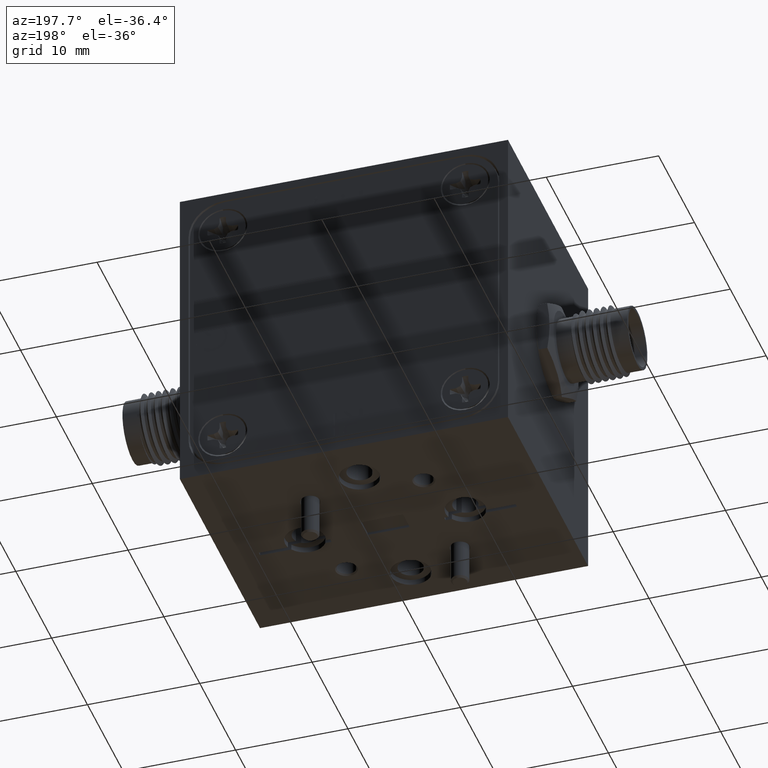
[diagram: clean part render]
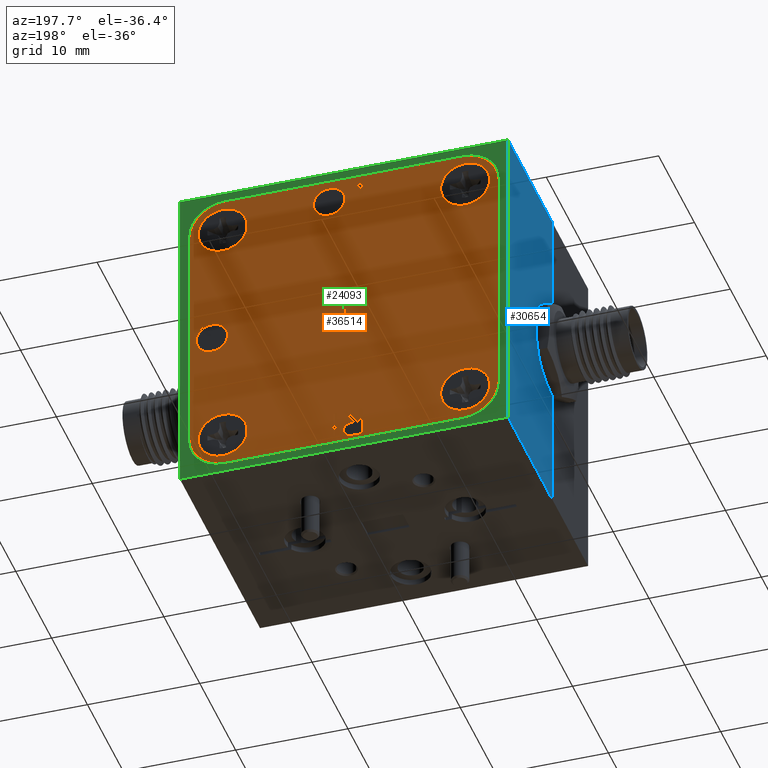
[diagram: same view with three faces highlighted in distinct colors, each labeled with its STEP entity id]
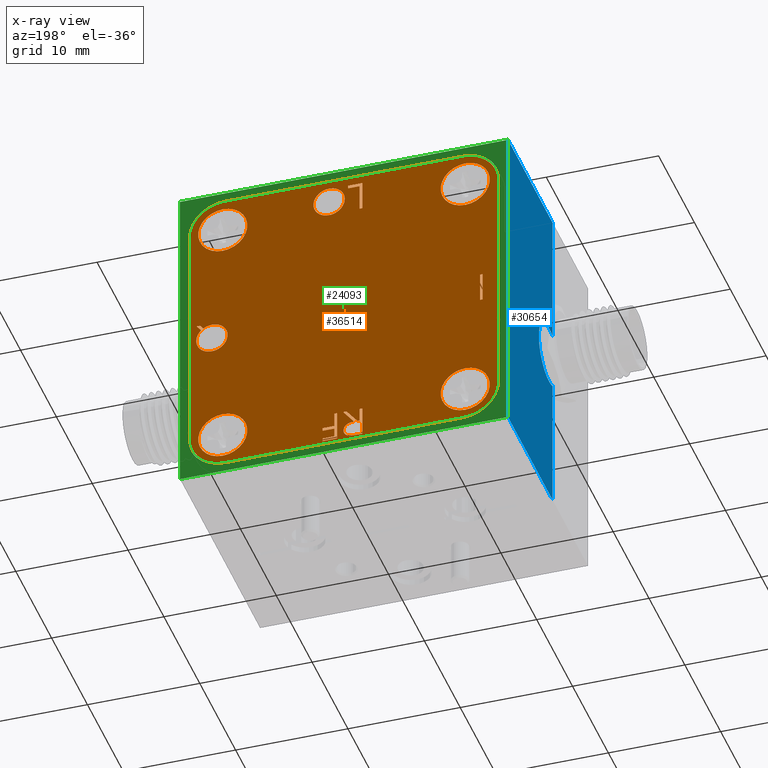
[diagram: x-ray of the same camera — body ghosted, the three highlighted faces saturated]
A machine part, auxiliary view with three faces highlighted in distinct colors.
The next image is the same camera in x-ray (body ghosted, the three faces saturated) — at least one of them is partly hidden behind the body in this view.
Their STEP definitions:

[orange] entity #36514 — the highlighted planar face has unit normal (0, 1, 0).
#201 = VECTOR ( 'NONE', #15893, 39.37007874015748143 ) ;
#314 = CARTESIAN_POINT ( 'NONE',  ( 0.5164579558047831531, 0.4894999999999999907, 0.04585366636701893733 ) ) ;
#316 = CARTESIAN_POINT ( 'NONE',  ( 0.001415014533644213699, 0.4894999999999999907, -0.5018033761788384117 ) ) ;
#318 = CARTESIAN_POINT ( 'NONE',  ( -0.4249999999999998224, 0.4894999999999999907, 0.4250000000000001554 ) ) ;
#444 = CARTESIAN_POINT ( 'NONE',  ( 0.4138337261080463070, 0.4894999999999999907, -0.03844070167446897446 ) ) ;
#500 = LINE ( 'NONE', #24137, #38603 ) ;
#509 = EDGE_LOOP ( 'NONE', ( #27210, #38438, #31558, #6637, #8659, #33614, #20386, #20065, #18938, #35417, #30072 ) ) ;
#563 = ORIENTED_EDGE ( 'NONE', *, *, #44496, .T. ) ;
#706 = CARTESIAN_POINT ( 'NONE',  ( 0.4323350105109352581, 0.4894999999999999907, -0.05988853001037039436 ) ) ;
#814 = CARTESIAN_POINT ( 'NONE',  ( 0.03348051001431596313, 0.4894999999999999907, -0.4246583812527079393 ) ) ;
#834 = CARTESIAN_POINT ( 'NONE',  ( -0.01109460232622508369, 0.4895000000000002127, -0.5240761027754705648 ) ) ;
#847 = CARTESIAN_POINT ( 'NONE',  ( 0.05030501999386588485, 0.4894999999999999907, 0.4036091967670297209 ) ) ;
#960 = CARTESIAN_POINT ( 'NONE',  ( 0.4294224308455503181, 0.4894999999999999907, -0.05783787674920545102 ) ) ;
#1057 = CARTESIAN_POINT ( 'NONE',  ( 0.09477613531612003039, 0.4895000000000000462, 0.4233829901822369624 ) ) ;
#1093 = CARTESIAN_POINT ( 'NONE',  ( 0.02441128267324962908, 0.4895000000000002127, 0.4108231575373811340 ) ) ;
#1233 = ORIENTED_EDGE ( 'NONE', *, *, #22248, .F. ) ;
#1241 = ORIENTED_EDGE ( 'NONE', *, *, #41889, .T. ) ;
#1343 = CARTESIAN_POINT ( 'NONE',  ( 0.03745015981878738187, 0.4894999999999999907, 0.4053747089568405793 ) ) ;
#1412 = CARTESIAN_POINT ( 'NONE',  ( 0.5154594048797588313, 0.4895000000000001572, 0.002845236911068805587 ) ) ;
#1508 = CARTESIAN_POINT ( 'NONE',  ( -0.04706502951559857206, 0.4894999999999999907, -0.4727353043296310120 ) ) ;
#1649 = CARTESIAN_POINT ( 'NONE',  ( -0.02919877858546587532, 0.4895000000000000462, -0.4729415308364519621 ) ) ;
#1661 = CARTESIAN_POINT ( 'NONE',  ( 0.5018388313568667991, 0.4894999999999999907, 0.02485377885570985365 ) ) ;
#1710 = CARTESIAN_POINT ( 'NONE',  ( 0.02413221941602535295, 0.4894999999999999907, -0.5288250479193745690 ) ) ;
#1761 = LINE ( 'NONE', #41307, #34183 ) ;
#1807 = CARTESIAN_POINT ( 'NONE',  ( 0.08701189925029818861, 0.4894999999999999907, 0.4156504699217257737 ) ) ;
#1829 = CARTESIAN_POINT ( 'NONE',  ( -0.01459641306260711993, 0.4894999999999999907, 0.5104309651888918609 ) ) ;
#1841 = CARTESIAN_POINT ( 'NONE',  ( 0.02755468371133176428, 0.4894999999999999352, 0.4091160404357189750 ) ) ;
#1849 = VERTEX_POINT ( 'NONE', #20834 ) ;
#1898 = CARTESIAN_POINT ( 'NONE',  ( -0.01083821800788100330, 0.4895000000000003237, -0.4778731516136499602 ) ) ;
#1911 = VERTEX_POINT ( 'NONE', #4914 ) ;
#2081 = CARTESIAN_POINT ( 'NONE',  ( 0.4150000000000003131, 0.4894999999999999907, -0.5399999999999995914 ) ) ;
#2112 = LINE ( 'NONE', #25503, #9001 ) ;
#2162 = VECTOR ( 'NONE', #47510, 39.37007874015748854 ) ;
#2200 = VECTOR ( 'NONE', #12452, 39.37007874015748143 ) ;
#2329 = EDGE_LOOP ( 'NONE', ( #39328, #38807 ) ) ;
#2411 = CARTESIAN_POINT ( 'NONE',  ( -0.004879694121183686742, 0.4894999999999999907, -0.4828145316105156293 ) ) ;
#2658 = CARTESIAN_POINT ( 'NONE',  ( -0.03441262444806206938, 0.4895000000000000462, -0.4727481959082610041 ) ) ;
#2823 = ORIENTED_EDGE ( 'NONE', *, *, #21433, .F. ) ;
#2966 = DIRECTION ( 'NONE',  ( 0.0000000000000000000, 0.0000000000000000000, 1.000000000000000000 ) ) ;
#3041 = CARTESIAN_POINT ( 'NONE',  ( 0.02622424535978594429, 0.4895000000000000462, 0.5069753274928796571 ) ) ;
#3061 = CARTESIAN_POINT ( 'NONE',  ( 0.07488008266388861134, 0.4894999999999999907, -0.4860900051843318748 ) ) ;
#3186 = VECTOR ( 'NONE', #15314, 39.37007874015748143 ) ;
#3219 = VECTOR ( 'NONE', #22184, 39.37007874015748143 ) ;
#3320 = EDGE_CURVE ( 'NONE', #44471, #42038, #47538, .T. ) ;
#3327 = ORIENTED_EDGE ( 'NONE', *, *, #40873, .T. ) ;
#3382 = VERTEX_POINT ( 'NONE', #35768 ) ;
#3398 = CARTESIAN_POINT ( 'NONE',  ( -0.03910077211787034435, 0.4895000000000000462, -0.5288115262431897223 ) ) ;
#3486 = VERTEX_POINT ( 'NONE', #29588 ) ;
#3504 = CARTESIAN_POINT ( 'NONE',  ( 0.4685507125050789035, 0.4894999999999999907, -0.06886217411339444483 ) ) ;
#3758 = CARTESIAN_POINT ( 'NONE',  ( 0.4648294788646534226, 0.4894999999999999352, -0.06895135478761450776 ) ) ;
#3783 = CARTESIAN_POINT ( 'NONE',  ( 0.4250000000000001554, 0.4894999999999999907, -0.4249999999999999334 ) ) ;
#3797 = CARTESIAN_POINT ( 'NONE',  ( 0.006317711124783972378, 0.4894999999999999352, 0.4889460446976230945 ) ) ;
#3833 = CARTESIAN_POINT ( 'NONE',  ( -0.05466051562670969088, 0.4894999999999999907, -0.4246583812527079393 ) ) ;
#3908 = CARTESIAN_POINT ( 'NONE',  ( -0.01729264441888423917, 0.4894999999999999907, -0.5268452380661378109 ) ) ;
#3960 = VECTOR ( 'NONE', #41697, 39.37007874015748143 ) ;
#4066 = CARTESIAN_POINT ( 'NONE',  ( -0.002441029213522752372, 0.4894999999999999907, 0.4642909135439872159 ) ) ;
#4089 = FACE_OUTER_BOUND ( 'NONE', #38062, .T. ) ;
#4199 = VERTEX_POINT ( 'NONE', #24963 ) ;
#4280 = CARTESIAN_POINT ( 'NONE',  ( 0.4792524319757582862, 0.4894999999999998797, -0.06686252555613743376 ) ) ;
#4342 = FACE_BOUND ( 'NONE', #28206, .T. ) ;
#4418 = CARTESIAN_POINT ( 'NONE',  ( -0.01956269244294900345, 0.4894999999999999907, -0.5274061109535626013 ) ) ;
#4424 = CARTESIAN_POINT ( 'NONE',  ( -0.01956269244294900345, 0.4894999999999999907, -0.5274061109535626013 ) ) ;
#4485 = ORIENTED_EDGE ( 'NONE', *, *, #17784, .T. ) ;
#4488 = CARTESIAN_POINT ( 'NONE',  ( 0.07488008266388861134, 0.4894999999999999907, -0.5181412872356139232 ) ) ;
#4505 = CARTESIAN_POINT ( 'NONE',  ( 0.5177433479729754984, 0.4894999999999999907, -0.01214593697356877028 ) ) ;
#4546 = B_SPLINE_CURVE_WITH_KNOTS ( 'NONE', 3,
 ( #9245, #13370, #32904, #5649, #21350, #44456, #21592, #24934, #1807, #36246, #1057, #16981, #17738, #33409, #33156, #40340, #49081, #9768, #29319 ),
 .UNSPECIFIED., .F., .F.,
 ( 4, 1, 1, 1, 1, 1, 1, 1, 1, 1, 1, 1, 1, 1, 1, 1, 4 ),
 ( 0.0000000000000000000, 0.06657003521518012334, 0.1307490414821777802, 0.1934128000295038119, 0.2549893988897086183, 0.3161135558759000097, 0.3772617579089839746, 0.4394007841555528371, 0.5029705893719761400, 0.5665249763607311806, 0.6282311025133087146, 0.6890906105998627629, 0.7493446689958042084, 0.8101695933722066201, 0.8716098243170432580, 0.9348691840727639812, 1.000000000000000000 ),
 .UNSPECIFIED. ) ;
#4549 = CARTESIAN_POINT ( 'NONE',  ( 0.4155317891564050403, 0.4895000000000000462, -0.04167504920419343867 ) ) ;
#4591 = FACE_BOUND ( 'NONE', #14877, .T. ) ;
#4691 = CARTESIAN_POINT ( 'NONE',  ( 0.01079750764084227467, 0.4895000000000000462, 0.4220743084089933483 ) ) ;
#4821 = CARTESIAN_POINT ( 'NONE',  ( -0.05466051562670969088, 0.4894999999999999907, 0.4062642985222251757 ) ) ;
#4876 = CARTESIAN_POINT ( 'NONE',  ( 0.4084210104817614373, 0.4895000000000000462, -0.008299193558843549409 ) ) ;
#4914 = CARTESIAN_POINT ( 'NONE',  ( 0.05150935616816211537, 0.4894999999999999907, 0.4035933583512850142 ) ) ;
#4950 = DIRECTION ( 'NONE',  ( 0.0000000000000000000, 1.000000000000000000, 0.0000000000000000000 ) ) ;
#4966 = EDGE_CURVE ( 'NONE', #21012, #33352, #13019, .T. ) ;
#5035 = CARTESIAN_POINT ( 'NONE',  ( 0.4194886056909875593, 0.4894999999999999352, -0.04776595157536900338 ) ) ;
#5063 = CARTESIAN_POINT ( 'NONE',  ( 0.4250000000000001554, 0.4894999999999999907, 0.3390000000000000790 ) ) ;
#5078 = VERTEX_POINT ( 'NONE', #21494 ) ;
#5139 = CARTESIAN_POINT ( 'NONE',  ( 0.001429227963033901250, 0.4894999999999999907, -0.5009679766052720362 ) ) ;
#5143 = VERTEX_POINT ( 'NONE', #46383 ) ;
#5161 = CARTESIAN_POINT ( 'NONE',  ( -0.5399999999999998135, 0.4894999999999999907, 0.4150000000000000355 ) ) ;
#5185 = ORIENTED_EDGE ( 'NONE', *, *, #23975, .T. ) ;
#5281 = CARTESIAN_POINT ( 'NONE',  ( 0.4592401634954661471, 0.4895000000000000462, -0.06894969625553182269 ) ) ;
#5318 = CARTESIAN_POINT ( 'NONE',  ( 0.1030500827871357189, 0.4895000000000000462, 0.4794973763980186487 ) ) ;
#5365 = CARTESIAN_POINT ( 'NONE',  ( -0.04316295285961566780, 0.4894999999999999907, -0.5288250479193745690 ) ) ;
#5481 = AXIS2_PLACEMENT_3D ( 'NONE', #30331, #45480, #42124 ) ;
#5511 = CARTESIAN_POINT ( 'NONE',  ( -0.01459641306260711993, 0.4894999999999999907, 0.4997472045051311040 ) ) ;
#5649 = CARTESIAN_POINT ( 'NONE',  ( 0.06279422136423559730, 0.4895000000000000462, 0.4044726614417745170 ) ) ;
#5800 = CARTESIAN_POINT ( 'NONE',  ( 0.4920738590627947717, 0.4894999999999999352, 0.03241060561481768493 ) ) ;
#5934 = CIRCLE ( 'NONE', #19078, 0.08599999999999997924 ) ;
#5983 = CARTESIAN_POINT ( 'NONE',  ( -0.03228943786017090395, 0.4894999999999999907, -0.4727732555775746026 ) ) ;
#6101 = VERTEX_POINT ( 'NONE', #49548 ) ;
#6134 = VERTEX_POINT ( 'NONE', #15385 ) ;
#6193 = DIRECTION ( 'NONE',  ( -1.000000000000000000, 0.0000000000000000000, 0.0000000000000000000 ) ) ;
#6206 = LINE ( 'NONE', #48623, #31635 ) ;
#6221 = CARTESIAN_POINT ( 'NONE',  ( -0.4767961738224678059, 0.4894999999999999907, -0.06632582081246825301 ) ) ;
#6243 = EDGE_CURVE ( 'NONE', #3486, #19394, #20243, .T. ) ;
#6300 = DIRECTION ( 'NONE',  ( -0.0000000000000000000, 1.000000000000000000, -0.0000000000000000000 ) ) ;
#6405 = CARTESIAN_POINT ( 'NONE',  ( 0.02413221941602535295, 0.4894999999999999907, -0.4246583812527079393 ) ) ;
#6452 = CARTESIAN_POINT ( 'NONE',  ( 0.07488008266388861134, 0.4894999999999999907, -0.4754062445005711735 ) ) ;
#6515 = EDGE_CURVE ( 'NONE', #9522, #10284, #19117, .T. ) ;
#6572 = ORIENTED_EDGE ( 'NONE', *, *, #28868, .T. ) ;
#6637 = ORIENTED_EDGE ( 'NONE', *, *, #33983, .T. ) ;
#7131 = CARTESIAN_POINT ( 'NONE',  ( 0.009554597306120023170, 0.4894999999999999352, 0.4932565880035216788 ) ) ;
#7148 = B_SPLINE_CURVE_WITH_KNOTS ( 'NONE', 3,
 ( #40242, #43612, #13008, #23839, #8630, #47456, #27679, #19961, #444, #4549, #39989, #5035, #43361, #20480, #20722, #960, #706, #8134, #28439, #48205, #20225, #16380, #44352, #24828, #5281, #28182, #39493 ),
 .UNSPECIFIED., .F., .F.,
 ( 4, 1, 1, 1, 1, 1, 1, 1, 1, 1, 1, 1, 1, 1, 1, 1, 1, 1, 1, 1, 1, 1, 1, 1, 4 ),
 ( 0.0000000000000000000, 0.04294674328311999523, 0.08559174927016308110, 0.1273442348477957786, 0.1691210933082150092, 0.2106332667734657771, 0.2525241407022988382, 0.2943009991627179023, 0.3368059667078248665, 0.3791196007503848109, 0.4208686033260863324, 0.4620374625207038233, 0.5028251959424983042, 0.5436015190109771966, 0.5843628611434202869, 0.6255204156466199761, 0.6670122666286022461, 0.7085517546538069311, 0.7498891096823181446, 0.7910176817309437780, 0.8320676863961219416, 0.8733740728916945528, 0.9148883481149929775, 0.9570532567168795746, 1.000000000000000000 ),
 .UNSPECIFIED. ) ;
#7231 = CARTESIAN_POINT ( 'NONE',  ( -0.04316295285961566780, 0.4894999999999999907, -0.5288250479193745690 ) ) ;
#7293 = CARTESIAN_POINT ( 'NONE',  ( 0.07488008266388861134, 0.4894999999999999907, -0.5181412872356139232 ) ) ;
#7296 = EDGE_CURVE ( 'NONE', #28137, #7767, #40013, .T. ) ;
#7333 = VERTEX_POINT ( 'NONE', #40772 ) ;
#7589 = CARTESIAN_POINT ( 'NONE',  ( 0.5056733995340290111, 0.4894999999999999352, -0.04913505261464164858 ) ) ;
#7767 = VERTEX_POINT ( 'NONE', #17588 ) ;
#7787 = DIRECTION ( 'NONE',  ( 1.000000000000000000, 0.0000000000000000000, 0.0000000000000000000 ) ) ;
#7867 = VERTEX_POINT ( 'NONE', #41463 ) ;
#7891 = CARTESIAN_POINT ( 'NONE',  ( 0.5004531814992276839, 0.4894999999999999907, 0.02623894948667705729 ) ) ;
#7941 = VECTOR ( 'NONE', #17922, 39.37007874015748143 ) ;
#8045 = LINE ( 'NONE', #8543, #9407 ) ;
#8089 = VECTOR ( 'NONE', #44360, 39.37007874015748143 ) ;
#8134 = CARTESIAN_POINT ( 'NONE',  ( 0.4353694859498659087, 0.4895000000000001572, -0.06179555528078407162 ) ) ;
#8152 = CARTESIAN_POINT ( 'NONE',  ( 0.05234402497158092277, 0.4894999999999999907, 0.5131019053598320223 ) ) ;
#8309 = EDGE_CURVE ( 'NONE', #34353, #12099, #2112, .T. ) ;
#8428 = LINE ( 'NONE', #12060, #2162 ) ;
#8484 = CARTESIAN_POINT ( 'NONE',  ( 0.03348051001431596313, 0.4894999999999999907, -0.4754062445005711735 ) ) ;
#8543 = CARTESIAN_POINT ( 'NONE',  ( -0.01459641306260711993, 0.4894999999999999907, 0.5104309651888918609 ) ) ;
#8566 = DIRECTION ( 'NONE',  ( -1.000000000000000000, 0.0000000000000000000, 0.0000000000000000000 ) ) ;
#8571 = EDGE_CURVE ( 'NONE', #29491, #42132, #44634, .T. ) ;
#8630 = CARTESIAN_POINT ( 'NONE',  ( 0.4092679881398008646, 0.4894999999999998797, -0.02474629637610827743 ) ) ;
#8659 = ORIENTED_EDGE ( 'NONE', *, *, #3320, .T. ) ;
#8673 = CARTESIAN_POINT ( 'NONE',  ( 0.05234402497158092277, 0.4894999999999999907, 0.5131019053598320223 ) ) ;
#8714 = CARTESIAN_POINT ( 'NONE',  ( 0.4419526011141930444, 0.4895000000000000462, 0.03662987661235797554 ) ) ;
#8919 = VERTEX_POINT ( 'NONE', #23491 ) ;
#8984 = CARTESIAN_POINT ( 'NONE',  ( -0.4249999999999998224, 0.4894999999999999907, 0.3390000000000001901 ) ) ;
#9001 = VECTOR ( 'NONE', #49129, 39.37007874015748143 ) ;
#9174 = CARTESIAN_POINT ( 'NONE',  ( 0.09805363488254549564, 0.4894999999999999907, 0.4888296537089371618 ) ) ;
#9213 = CARTESIAN_POINT ( 'NONE',  ( 0.4082848788817062813, 0.4894999999999999907, -0.01378341963725456844 ) ) ;
#9245 = CARTESIAN_POINT ( 'NONE',  ( 0.05150935616816211537, 0.4894999999999999907, 0.4035933583512850142 ) ) ;
#9250 = CARTESIAN_POINT ( 'NONE',  ( 0.03348051001431596313, 0.4894999999999999907, -0.5181412872356139232 ) ) ;
#9407 = VECTOR ( 'NONE', #16290, 39.37007874015748143 ) ;
#9432 = CARTESIAN_POINT ( 'NONE',  ( 0.09480538456283897630, 0.4895000000000000462, 0.4931584185418512178 ) ) ;
#9441 = CARTESIAN_POINT ( 'NONE',  ( -0.5399999999999998135, 0.4894999999999999907, 0.5400000000000001465 ) ) ;
#9493 = VERTEX_POINT ( 'NONE', #46521 ) ;
#9522 = VERTEX_POINT ( 'NONE', #50369 ) ;
#9547 = CARTESIAN_POINT ( 'NONE',  ( 0.008594074055488938255, 0.4894999999999999352, 0.4248713618846554629 ) ) ;
#9622 = VECTOR ( 'NONE', #47974, 39.37007874015748143 ) ;
#9651 = EDGE_LOOP ( 'NONE', ( #33296, #46022 ) ) ;
#9670 = LINE ( 'NONE', #1710, #8089 ) ;
#9768 = CARTESIAN_POINT ( 'NONE',  ( 0.1068852290099016056, 0.4894999999999999907, 0.4564182600790563926 ) ) ;
#9801 = CARTESIAN_POINT ( 'NONE',  ( -0.008795464878846434228, 0.4894999999999999907, -0.4246583812527079393 ) ) ;
#9836 = VERTEX_POINT ( 'NONE', #17712 ) ;
#10095 = CARTESIAN_POINT ( 'NONE',  ( 0.07488008266388861134, 0.4894999999999999907, -0.5288250479193745690 ) ) ;
#10183 = LINE ( 'NONE', #45148, #35668 ) ;
#10194 = LINE ( 'NONE', #29740, #19255 ) ;
#10260 = ORIENTED_EDGE ( 'NONE', *, *, #15213, .T. ) ;
#10284 = VERTEX_POINT ( 'NONE', #19416 ) ;
#10407 = VECTOR ( 'NONE', #29061, 39.37007874015748143 ) ;
#10619 = CARTESIAN_POINT ( 'NONE',  ( -0.0007980642187195277539, 0.4894999999999998797, -0.4892750459937176832 ) ) ;
#10626 = VECTOR ( 'NONE', #49610, 39.37007874015748143 ) ;
#10674 = CARTESIAN_POINT ( 'NONE',  ( 0.4711978450202016777, 0.4894999999999999907, 0.04001868225588116335 ) ) ;
#10741 = CARTESIAN_POINT ( 'NONE',  ( -0.4249999999999997669, 0.4894999999999999907, -0.5109999999999997877 ) ) ;
#11196 = ORIENTED_EDGE ( 'NONE', *, *, #45675, .T. ) ;
#11221 = CIRCLE ( 'NONE', #5481, 0.08599999999999997924 ) ;
#11264 = VECTOR ( 'NONE', #24629, 39.37007874015748143 ) ;
#11411 = LINE ( 'NONE', #27079, #16017 ) ;
#11541 = CARTESIAN_POINT ( 'NONE',  ( 2.048885995248197414E-16, 0.4894999999999999907, 1.365923996832131609E-16 ) ) ;
#11581 = B_SPLINE_CURVE_WITH_KNOTS ( 'NONE', 3,
 ( #8152, #19477, #31304, #27187, #42354, #46456, #3041, #11765, #23333, #34391, #7131, #3797, #50571, #35408, #43379, #27440, #4066, #22830, #15892 ),
 .UNSPECIFIED., .F., .F.,
 ( 4, 1, 1, 1, 1, 1, 1, 1, 1, 1, 1, 1, 1, 1, 1, 1, 4 ),
 ( 0.0000000000000000000, 0.06581887684330700594, 0.1297465269068317495, 0.1920719544880060414, 0.2534594242982024515, 0.3145695877964205245, 0.3762798811880264105, 0.4390256536685600008, 0.5032670288290859162, 0.5674928228792947005, 0.6297047956052452822, 0.6909996492157558512, 0.7514516509174469228, 0.8120043642646949111, 0.8731496810680428045, 0.9356354837317859552, 0.9999999999999998890 ),
 .UNSPECIFIED. ) ;
#11599 = CARTESIAN_POINT ( 'NONE',  ( 0.03348051001431596313, 0.4894999999999999907, -0.4246583812527079393 ) ) ;
#11605 = LINE ( 'NONE', #50663, #17640 ) ;
#11721 = CARTESIAN_POINT ( 'NONE',  ( 0.5177476039461980095, 0.4894999999999999907, -0.01601189334890924798 ) ) ;
#11730 = CARTESIAN_POINT ( 'NONE',  ( 0.03348051001431596313, 0.4894999999999999907, -0.5181412872356139232 ) ) ;
#11765 = CARTESIAN_POINT ( 'NONE',  ( 0.02165608813673382954, 0.4894999999999997686, 0.5042311495445156444 ) ) ;
#11910 = VERTEX_POINT ( 'NONE', #15925 ) ;
#12060 = CARTESIAN_POINT ( 'NONE',  ( 0.5047934592770054740, 0.4894999999999999907, 0.04585366636701893733 ) ) ;
#12086 = CARTESIAN_POINT ( 'NONE',  ( 0.4144323702237300844, 0.4894999999999997686, 0.01184801182701685635 ) ) ;
#12099 = VERTEX_POINT ( 'NONE', #43658 ) ;
#12271 = DIRECTION ( 'NONE',  ( 0.0000000000000000000, 0.0000000000000000000, 1.000000000000000000 ) ) ;
#12452 = DIRECTION ( 'NONE',  ( 1.000000000000000000, 0.0000000000000000000, 0.0000000000000000000 ) ) ;
#12648 = CARTESIAN_POINT ( 'NONE',  ( -0.4149999999999998690, 0.4894999999999999907, -0.4149999999999998135 ) ) ;
#12690 = AXIS2_PLACEMENT_3D ( 'NONE', #50829, #38736, #46715 ) ;
#12850 = CARTESIAN_POINT ( 'NONE',  ( 0.5400000000000002576, 0.4894999999999999907, -0.4149999999999995359 ) ) ;
#12999 = DIRECTION ( 'NONE',  ( 0.0000000000000000000, 1.000000000000000000, 0.0000000000000000000 ) ) ;
#13008 = CARTESIAN_POINT ( 'NONE',  ( 0.4083336743845730754, 0.4894999999999999352, -0.01749179332649917692 ) ) ;
#13019 = LINE ( 'NONE', #41257, #35906 ) ;
#13088 = CARTESIAN_POINT ( 'NONE',  ( 0.4092049223206905562, 0.4894999999999999352, -0.002955814962386916003 ) ) ;
#13220 = DIRECTION ( 'NONE',  ( -1.000000000000000000, 0.0000000000000000000, -2.529488883022465943E-16 ) ) ;
#13244 = VERTEX_POINT ( 'NONE', #37333 ) ;
#13292 = CARTESIAN_POINT ( 'NONE',  ( 0.1067943102779741193, 0.4895000000000001572, 0.4638729777840942536 ) ) ;
#13370 = CARTESIAN_POINT ( 'NONE',  ( 0.05343816884399642253, 0.4894999999999999352, 0.4036422119039952405 ) ) ;
#13494 = EDGE_CURVE ( 'NONE', #45209, #3382, #20840, .T. ) ;
#13520 = CARTESIAN_POINT ( 'NONE',  ( 0.4633312864671763620, 0.4894999999999999907, 0.04051178602513859361 ) ) ;
#13549 = CARTESIAN_POINT ( 'NONE',  ( 0.05421785165523109601, 0.4895000000000000462, 0.5130562435375882746 ) ) ;
#13662 = LINE ( 'NONE', #9801, #10626 ) ;
#13718 = CARTESIAN_POINT ( 'NONE',  ( 0.4250000000000001554, 0.4894999999999999907, 0.5110000000000000098 ) ) ;
#14311 = DIRECTION ( 'NONE',  ( 1.000000000000000000, 0.0000000000000000000, 0.0000000000000000000 ) ) ;
#14415 = EDGE_CURVE ( 'NONE', #26260, #1911, #35423, .T. ) ;
#14488 = CARTESIAN_POINT ( 'NONE',  ( -0.002593400201139573792, 0.4894999999999999907, -0.4858773484367099327 ) ) ;
#14739 = CARTESIAN_POINT ( 'NONE',  ( 0.4250000000000001554, 0.4894999999999999907, 0.4250000000000000444 ) ) ;
#14877 = EDGE_LOOP ( 'NONE', ( #33415, #4485, #30123, #32671 ) ) ;
#15034 = VERTEX_POINT ( 'NONE', #10741 ) ;
#15084 = CARTESIAN_POINT ( 'NONE',  ( 0.5019700761572780667, 0.4895000000000000462, -0.05317341099029496837 ) ) ;
#15209 = CARTESIAN_POINT ( 'NONE',  ( -0.008795464878846434228, 0.4894999999999999907, -0.4246583812527079393 ) ) ;
#15213 = EDGE_CURVE ( 'NONE', #1849, #26260, #11581, .T. ) ;
#15224 = CARTESIAN_POINT ( 'NONE',  ( -0.02589747266390391225, 0.4895000000000001572, -0.5282746023319802031 ) ) ;
#15277 = EDGE_CURVE ( 'NONE', #3382, #45209, #43025, .T. ) ;
#15314 = DIRECTION ( 'NONE',  ( 0.0000000000000000000, 0.0000000000000000000, 1.000000000000000000 ) ) ;
#15385 = CARTESIAN_POINT ( 'NONE',  ( -0.05466051562670969088, 0.4894999999999999907, -0.4727353043296310120 ) ) ;
#15406 = FACE_BOUND ( 'NONE', #47479, .T. ) ;
#15536 = DIRECTION ( 'NONE',  ( 0.0000000000000000000, 0.0000000000000000000, -1.000000000000000000 ) ) ;
#15892 = CARTESIAN_POINT ( 'NONE',  ( -0.002577182293376353937, 0.4894999999999999907, 0.4588066996974388689 ) ) ;
#15893 = DIRECTION ( 'NONE',  ( 0.6322048658461607573, 0.0000000000000000000, 0.7748012697462736131 ) ) ;
#15916 = DIRECTION ( 'NONE',  ( 0.0000000000000000000, 1.000000000000000000, 0.0000000000000000000 ) ) ;
#15925 = CARTESIAN_POINT ( 'NONE',  ( -0.5399999999999998135, 0.4894999999999999907, -0.4149999999999998135 ) ) ;
#16005 = CARTESIAN_POINT ( 'NONE',  ( 0.001429227963033901250, 0.4894999999999999907, -0.5009679766052720362 ) ) ;
#16007 = DIRECTION ( 'NONE',  ( -0.0000000000000000000, 1.000000000000000000, -0.0000000000000000000 ) ) ;
#16017 = VECTOR ( 'NONE', #26572, 39.37007874015748143 ) ;
#16045 = LINE ( 'NONE', #35041, #45557 ) ;
#16141 = VERTEX_POINT ( 'NONE', #5063 ) ;
#16237 = EDGE_CURVE ( 'NONE', #13244, #18478, #10183, .T. ) ;
#16248 = CARTESIAN_POINT ( 'NONE',  ( -0.04706502951559857206, 0.4894999999999999907, -0.4727353043296310120 ) ) ;
#16290 = DIRECTION ( 'NONE',  ( -1.000000000000000000, 0.0000000000000000000, 0.0000000000000000000 ) ) ;
#16342 = CARTESIAN_POINT ( 'NONE',  ( 0.5135485932147095811, 0.4894999999999997686, 0.008017293613504828526 ) ) ;
#16380 = CARTESIAN_POINT ( 'NONE',  ( 0.4485535430613035723, 0.4894999999999999907, -0.06722454402336218438 ) ) ;
#16381 = B_SPLINE_CURVE_WITH_KNOTS ( 'NONE', 3,
 ( #24530, #28633, #24779, #29150, #10619, #14488, #2411, #25782, #1898, #45821, #37852, #41961, #21943, #17832, #26303, #1649, #5983, #2658, #26047 ),
 .UNSPECIFIED., .F., .F.,
 ( 4, 1, 1, 1, 1, 1, 1, 1, 1, 1, 1, 1, 1, 1, 1, 1, 4 ),
 ( 0.0000000000000000000, 0.07878023558214006239, 0.1537206442085852220, 0.2267135303087815246, 0.2991911660659363759, 0.3711899968376687342, 0.4430064143534092613, 0.5166891732948802884, 0.5932172166234122024, 0.6338729178078458260, 0.6769891422899793065, 0.7228995063258271125, 0.7719586105061445602, 0.8242113233348359325, 0.8793786506272024406, 0.9379481193304182174, 1.000000000000000000 ),
 .UNSPECIFIED. ) ;
#16588 = LINE ( 'NONE', #17332, #32653 ) ;
#16743 = CARTESIAN_POINT ( 'NONE',  ( -0.003001142586940489746, 0.4894999999999999907, -0.5164564164938988400 ) ) ;
#16909 = CARTESIAN_POINT ( 'NONE',  ( 0.08275662980521027168, 0.4895000000000000462, 0.5041771391252131140 ) ) ;
#16954 = CARTESIAN_POINT ( 'NONE',  ( 0.4282305322134781767, 0.4894999999999999352, 0.02839225835796161529 ) ) ;
#16981 = CARTESIAN_POINT ( 'NONE',  ( 0.09804476288365814030, 0.4894999999999998797, 0.4276829279820261176 ) ) ;
#17016 = CARTESIAN_POINT ( 'NONE',  ( 0.006514438655132368493, 0.4894999999999999907, 0.4278142066212961558 ) ) ;
#17058 = CIRCLE ( 'NONE', #36746, 0.1249999999999999584 ) ;
#17085 = CARTESIAN_POINT ( 'NONE',  ( 0.5045668091875823436, 0.4895000000000000462, 0.02212674449547444994 ) ) ;
#17332 = CARTESIAN_POINT ( 'NONE',  ( 0.5400000000000002576, 0.4894999999999999907, -0.5399999999999995914 ) ) ;
#17418 = LINE ( 'NONE', #1508, #41061 ) ;
#17518 = CARTESIAN_POINT ( 'NONE',  ( -0.002561270522390838526, 0.4895000000000001572, 0.4575676321636099053 ) ) ;
#17588 = CARTESIAN_POINT ( 'NONE',  ( -0.05466051562670969088, 0.4894999999999999907, 0.4997472045051311040 ) ) ;
#17640 = VECTOR ( 'NONE', #38824, 39.37007874015748143 ) ;
#17689 = DIRECTION ( 'NONE',  ( 0.0000000000000000000, 0.0000000000000000000, 1.000000000000000000 ) ) ;
#17712 = CARTESIAN_POINT ( 'NONE',  ( 0.03348051001431596313, 0.4894999999999999907, -0.4860900051843318748 ) ) ;
#17738 = CARTESIAN_POINT ( 'NONE',  ( 0.1007841168637687301, 0.4894999999999999907, 0.4322275351935342957 ) ) ;
#17784 = EDGE_CURVE ( 'NONE', #42453, #13244, #36704, .T. ) ;
#17832 = CARTESIAN_POINT ( 'NONE',  ( -0.02355789480923650356, 0.4895000000000001572, -0.4735783846721924317 ) ) ;
#17898 = DIRECTION ( 'NONE',  ( 0.0000000000000000000, 0.0000000000000000000, 1.000000000000000000 ) ) ;
#17922 = DIRECTION ( 'NONE',  ( 0.0000000000000000000, 0.0000000000000000000, 1.000000000000000000 ) ) ;
#18170 = CARTESIAN_POINT ( 'NONE',  ( 0.03348051001431596313, 0.4894999999999999907, -0.4754062445005711735 ) ) ;
#18190 = DIRECTION ( 'NONE',  ( 1.000000000000000000, 0.0000000000000000000, 0.0000000000000000000 ) ) ;
#18478 = VERTEX_POINT ( 'NONE', #19587 ) ;
#18504 = VERTEX_POINT ( 'NONE', #36034 ) ;
#18539 = VERTEX_POINT ( 'NONE', #48347 ) ;
#18820 = CARTESIAN_POINT ( 'NONE',  ( -0.04177184784433057158, 0.4895000000000000462, -0.5288204173840165279 ) ) ;
#18938 = ORIENTED_EDGE ( 'NONE', *, *, #35672, .T. ) ;
#19041 = LINE ( 'NONE', #6452, #29876 ) ;
#19078 = AXIS2_PLACEMENT_3D ( 'NONE', #3783, #23846, #12271 ) ;
#19117 = B_SPLINE_CURVE_WITH_KNOTS ( 'NONE', 3,
 ( #28260, #31870, #47283, #40568, #20794, #8714, #24413, #39813, #16954, #47535, #31623, #40072, #12086, #24659, #48287, #13088, #4876, #36219, #9213 ),
 .UNSPECIFIED., .F., .F.,
 ( 4, 1, 1, 1, 1, 1, 1, 1, 1, 1, 1, 1, 1, 1, 1, 1, 4 ),
 ( 0.0000000000000000000, 0.06598441069427869732, 0.1298376775260092209, 0.1923264853164007304, 0.2536425275300625004, 0.3149010679722001327, 0.3765395581448094386, 0.4394064860026821728, 0.5035731128955243108, 0.5677241768075023121, 0.6300096275864545126, 0.6913591876110214418, 0.7517408501832354428, 0.8122231072176318012, 0.8732972781823891140, 0.9357103752807188757, 1.000000000000000000 ),
 .UNSPECIFIED. ) ;
#19174 = CARTESIAN_POINT ( 'NONE',  ( 0.4890514719136569433, 0.4894999999999998797, -0.06287643879313298267 ) ) ;
#19255 = VECTOR ( 'NONE', #30253, 39.37007874015748143 ) ;
#19295 = EDGE_CURVE ( 'NONE', #15034, #5143, #44558, .T. ) ;
#19394 = VERTEX_POINT ( 'NONE', #45880 ) ;
#19416 = CARTESIAN_POINT ( 'NONE',  ( 0.4082848788817062813, 0.4894999999999999907, -0.01378341963725456844 ) ) ;
#19438 = CARTESIAN_POINT ( 'NONE',  ( 0.5168771233468402171, 0.4895000000000000462, -0.02520916785987844383 ) ) ;
#19477 = CARTESIAN_POINT ( 'NONE',  ( 0.05045639643052202833, 0.4894999999999999352, 0.5130557926558353410 ) ) ;
#19573 = CARTESIAN_POINT ( 'NONE',  ( -0.05466051562670969088, 0.4894999999999999907, -0.4246583812527079393 ) ) ;
#19578 = CARTESIAN_POINT ( 'NONE',  ( -0.005879734309407956896, 0.4894999999999999907, -0.5199347305171920786 ) ) ;
#19587 = CARTESIAN_POINT ( 'NONE',  ( -0.4767961738224678059, 0.4894999999999999907, -0.06632582081246825301 ) ) ;
#19606 = EDGE_LOOP ( 'NONE', ( #37774, #47801, #563, #43520, #41013, #28273, #36650, #23050, #36922, #1241 ) ) ;
#19856 = CARTESIAN_POINT ( 'NONE',  ( 0.4150000000000003131, 0.4894999999999999907, -0.4149999999999995359 ) ) ;
#19941 = CARTESIAN_POINT ( 'NONE',  ( 0.5089150543422795714, 0.4894999999999998797, -0.04480738404332725716 ) ) ;
#19961 = CARTESIAN_POINT ( 'NONE',  ( 0.4123316478281576769, 0.4894999999999999352, -0.03512327284703938707 ) ) ;
#20065 = ORIENTED_EDGE ( 'NONE', *, *, #50415, .T. ) ;
#20097 = DIRECTION ( 'NONE',  ( 0.0000000000000000000, 0.0000000000000000000, 1.000000000000000000 ) ) ;
#20182 = CARTESIAN_POINT ( 'NONE',  ( 0.5176448725840100407, 0.4895000000000000462, -0.008269388450524033790 ) ) ;
#20225 = CARTESIAN_POINT ( 'NONE',  ( 0.4451444882344657850, 0.4894999999999999352, -0.06618804635803528236 ) ) ;
#20243 = LINE ( 'NONE', #7891, #201 ) ;
#20329 = CIRCLE ( 'NONE', #42502, 0.1250000000000000000 ) ;
#20351 = CARTESIAN_POINT ( 'NONE',  ( -0.02013197148676884943, 0.4895000000000000462, -0.5275234198657782203 ) ) ;
#20357 = CARTESIAN_POINT ( 'NONE',  ( -0.01880059053411457792, 0.4895000000000000462, -0.5272178143653017957 ) ) ;
#20373 = CARTESIAN_POINT ( 'NONE',  ( 0.01321308483215326117, 0.4894999999999999352, 0.4194955285328313410 ) ) ;
#20386 = ORIENTED_EDGE ( 'NONE', *, *, #25019, .T. ) ;
#20480 = CARTESIAN_POINT ( 'NONE',  ( 0.4241357109437770556, 0.4894999999999999352, -0.05314557891914791637 ) ) ;
#20514 = CARTESIAN_POINT ( 'NONE',  ( 0.06331063611484330500, 0.4895000000000000462, 0.5121840542752306158 ) ) ;
#20544 = DIRECTION ( 'NONE',  ( 0.0000000000000000000, 0.0000000000000000000, -1.000000000000000000 ) ) ;
#20608 = CARTESIAN_POINT ( 'NONE',  ( -0.001822909655375629578, 0.4895000000000000462, -0.5145307094450541907 ) ) ;
#20700 = B_SPLINE_CURVE_WITH_KNOTS ( 'NONE', 3,
 ( #33312, #5800, #21492, #25598, #25841, #29709, #45130, #10674, #48717, #33564, #13520 ),
 .UNSPECIFIED., .F., .F.,
 ( 4, 1, 1, 1, 1, 1, 1, 1, 4 ),
 ( 0.0000000000000000000, 0.1287770352440073818, 0.2551818927067122655, 0.3801502058277858587, 0.5033630045969954558, 0.6268586451702857776, 0.7503101344280983520, 0.8744398126914179059, 1.000000000000000000 ),
 .UNSPECIFIED. ) ;
#20722 = CARTESIAN_POINT ( 'NONE',  ( 0.4267086189505717164, 0.4894999999999999907, -0.05556200477196503867 ) ) ;
#20762 = CARTESIAN_POINT ( 'NONE',  ( 0.02413221941602535295, 0.4894999999999999907, -0.5288250479193745690 ) ) ;
#20794 = CARTESIAN_POINT ( 'NONE',  ( 0.4469777544086773191, 0.4894999999999999352, 0.03838168210863380364 ) ) ;
#20834 = CARTESIAN_POINT ( 'NONE',  ( 0.05234402497158092277, 0.4894999999999999907, 0.5131019053598320223 ) ) ;
#20840 = CIRCLE ( 'NONE', #29102, 0.08599999999999997924 ) ;
#20941 = CARTESIAN_POINT ( 'NONE',  ( 0.5110783455504896988, 0.4895000000000001572, 0.01293038698061055487 ) ) ;
#21012 = VERTEX_POINT ( 'NONE', #42649 ) ;
#21021 = CARTESIAN_POINT ( 'NONE',  ( 0.1060154776132259530, 0.4894999999999998797, 0.4692939136225080521 ) ) ;
#21032 = VECTOR ( 'NONE', #34654, 39.37007874015748143 ) ;
#21125 = CARTESIAN_POINT ( 'NONE',  ( -0.0008047874102231931471, 0.4894999999999999352, 0.4443215509317567924 ) ) ;
#21207 = EDGE_CURVE ( 'NONE', #39942, #45293, #32860, .T. ) ;
#21279 = CARTESIAN_POINT ( 'NONE',  ( 0.1008112292614427169, 0.4894999999999999352, 0.4842764705576914630 ) ) ;
#21350 = CARTESIAN_POINT ( 'NONE',  ( 0.06810955158103822182, 0.4894999999999999352, 0.4057433575717470098 ) ) ;
#21382 = CARTESIAN_POINT ( 'NONE',  ( -0.001596510998002930934, 0.4894999999999999352, 0.4478504481925994485 ) ) ;
#21433 = EDGE_CURVE ( 'NONE', #16141, #46086, #41997, .T. ) ;
#21439 = VECTOR ( 'NONE', #40268, 39.37007874015748143 ) ;
#21476 = CARTESIAN_POINT ( 'NONE',  ( -0.4149999999999998690, 0.4894999999999999907, 0.4150000000000000355 ) ) ;
#21492 = CARTESIAN_POINT ( 'NONE',  ( 0.4897763422673884759, 0.4894999999999998797, 0.03380677769288638335 ) ) ;
#21494 = CARTESIAN_POINT ( 'NONE',  ( 0.4932332963496549594, 0.4894999999999999907, 0.03170603014907021761 ) ) ;
#21521 = CARTESIAN_POINT ( 'NONE',  ( 0.1047940192806659510, 0.4895000000000002682, 0.4745049462559078890 ) ) ;
#21592 = CARTESIAN_POINT ( 'NONE',  ( 0.07805190620517446498, 0.4894999999999997686, 0.4096932792342916629 ) ) ;
#21690 = VERTEX_POINT ( 'NONE', #1829 ) ;
#21728 = ORIENTED_EDGE ( 'NONE', *, *, #44625, .F. ) ;
#21943 = CARTESIAN_POINT ( 'NONE',  ( -0.02101214080310915416, 0.4894999999999997686, -0.4740652933558408000 ) ) ;
#22117 = CARTESIAN_POINT ( 'NONE',  ( -0.4149999999999998135, 0.4894999999999999907, 0.5400000000000000355 ) ) ;
#22162 = DIRECTION ( 'NONE',  ( 0.0000000000000000000, 0.0000000000000000000, 1.000000000000000000 ) ) ;
#22184 = DIRECTION ( 'NONE',  ( 0.0000000000000000000, 0.0000000000000000000, 1.000000000000000000 ) ) ;
#22248 = EDGE_CURVE ( 'NONE', #37114, #33514, #5934, .T. ) ;
#22273 = B_SPLINE_CURVE_WITH_KNOTS ( 'NONE', 3,
 ( #33082, #44642, #13292, #21021, #21521, #5318, #21279, #9174, #9432, #25116, #28219, #16909, #32582, #40787, #36934, #20514, #48747, #13549, #8673 ),
 .UNSPECIFIED., .F., .F.,
 ( 4, 1, 1, 1, 1, 1, 1, 1, 1, 1, 1, 1, 1, 1, 1, 1, 4 ),
 ( 0.0000000000000000000, 0.06522650389227586942, 0.1285689957067290279, 0.1903203781044674192, 0.2513779886240634642, 0.3123875283336947084, 0.3737887042767233381, 0.4364311597804502729, 0.5005667553098538392, 0.5646867953847440891, 0.6271355178835139599, 0.6884554088949800255, 0.7492457464637475306, 0.8101551773646786803, 0.8716709256529233674, 0.9347734961077244220, 1.000000000000000000 ),
 .UNSPECIFIED. ) ;
#22830 = CARTESIAN_POINT ( 'NONE',  ( -0.002531352025478831019, 0.4895000000000000462, 0.4606527320462103781 ) ) ;
#22934 = EDGE_CURVE ( 'NONE', #42038, #7867, #16381, .T. ) ;
#22937 = CARTESIAN_POINT ( 'NONE',  ( -0.02867159930010345151, 0.4894999999999998797, -0.5284975767761209697 ) ) ;
#23028 = ORIENTED_EDGE ( 'NONE', *, *, #36233, .T. ) ;
#23050 = ORIENTED_EDGE ( 'NONE', *, *, #28457, .T. ) ;
#23133 = EDGE_CURVE ( 'NONE', #46086, #16141, #41290, .T. ) ;
#23260 = CARTESIAN_POINT ( 'NONE',  ( -0.4149999999999998135, 0.4894999999999999907, -0.5399999999999998135 ) ) ;
#23333 = CARTESIAN_POINT ( 'NONE',  ( 0.01732516113549413886, 0.4894999999999999907, 0.5009749846284260455 ) ) ;
#23358 = FACE_BOUND ( 'NONE', #2329, .T. ) ;
#23491 = CARTESIAN_POINT ( 'NONE',  ( 0.1069313647151706737, 0.4894999999999999907, 0.4583058984153875470 ) ) ;
#23622 = FACE_BOUND ( 'NONE', #48268, .T. ) ;
#23707 = CARTESIAN_POINT ( 'NONE',  ( -0.0008072406160157985684, 0.4894999999999999352, -0.5125169735068393351 ) ) ;
#23756 = CARTESIAN_POINT ( 'NONE',  ( -0.06400880622500028372, 0.4894999999999999907, -0.5288250479193745690 ) ) ;
#23839 = CARTESIAN_POINT ( 'NONE',  ( 0.4087095419964534293, 0.4895000000000002682, -0.02114914962563766224 ) ) ;
#23846 = DIRECTION ( 'NONE',  ( -0.0000000000000000000, 1.000000000000000000, -0.0000000000000000000 ) ) ;
#23949 = EDGE_CURVE ( 'NONE', #12099, #21012, #42987, .T. ) ;
#23975 = EDGE_CURVE ( 'NONE', #33352, #38217, #24117, .T. ) ;
#24116 = EDGE_CURVE ( 'NONE', #4199, #29480, #19041, .T. ) ;
#24117 = CIRCLE ( 'NONE', #24950, 0.1250000000000000000 ) ;
#24137 = CARTESIAN_POINT ( 'NONE',  ( 0.002764698048503997588, 0.4894999999999999907, -0.4246583812527079393 ) ) ;
#24223 = CARTESIAN_POINT ( 'NONE',  ( -0.002577182293376353937, 0.4894999999999999907, 0.4588066996974388689 ) ) ;
#24234 = DIRECTION ( 'NONE',  ( 0.0000000000000000000, 0.0000000000000000000, 1.000000000000000000 ) ) ;
#24274 = CARTESIAN_POINT ( 'NONE',  ( 0.03348051001431596313, 0.4894999999999999907, -0.4860900051843318748 ) ) ;
#24395 = CARTESIAN_POINT ( 'NONE',  ( -0.06400880622500028372, 0.4894999999999999907, -0.5288250479193745690 ) ) ;
#24413 = CARTESIAN_POINT ( 'NONE',  ( 0.4371522852804688997, 0.4894999999999999907, 0.03439230273023593382 ) ) ;
#24439 = ORIENTED_EDGE ( 'NONE', *, *, #7296, .T. ) ;
#24479 = CARTESIAN_POINT ( 'NONE',  ( 0.0002306788691366982156, 0.4894999999999999907, 0.4408703311489503007 ) ) ;
#24530 = CARTESIAN_POINT ( 'NONE',  ( 0.001429227963033901250, 0.4894999999999999907, -0.5009679766052720362 ) ) ;
#24629 = DIRECTION ( 'NONE',  ( -0.0000000000000000000, -0.0000000000000000000, 1.000000000000000000 ) ) ;
#24642 = ORIENTED_EDGE ( 'NONE', *, *, #6243, .T. ) ;
#24651 = CARTESIAN_POINT ( 'NONE',  ( -0.4861444644207584265, 0.4894999999999999907, 0.03784084585419842522 ) ) ;
#24659 = CARTESIAN_POINT ( 'NONE',  ( 0.4121931295576666265, 0.4894999999999999352, 0.007112645811845883827 ) ) ;
#24724 = CARTESIAN_POINT ( 'NONE',  ( -0.002148942581536383758, 0.4894999999999999352, 0.4514483844356648734 ) ) ;
#24779 = CARTESIAN_POINT ( 'NONE',  ( 0.001300198382732216384, 0.4894999999999999352, -0.4968717780189921274 ) ) ;
#24828 = CARTESIAN_POINT ( 'NONE',  ( 0.4556039929773892938, 0.4894999999999998797, -0.06857020319717645196 ) ) ;
#24934 = CARTESIAN_POINT ( 'NONE',  ( 0.08265425419596569845, 0.4895000000000002127, 0.4124220038872538074 ) ) ;
#24950 = AXIS2_PLACEMENT_3D ( 'NONE', #19856, #35281, #24234 ) ;
#24963 = CARTESIAN_POINT ( 'NONE',  ( 0.07488008266388861134, 0.4894999999999999907, -0.4754062445005711735 ) ) ;
#25019 = EDGE_CURVE ( 'NONE', #7867, #18539, #42238, .T. ) ;
#25038 = CARTESIAN_POINT ( 'NONE',  ( 0.5177934258902533449, 0.4894999999999999907, -0.01411728715862208862 ) ) ;
#25116 = CARTESIAN_POINT ( 'NONE',  ( 0.09110875209160927690, 0.4894999999999999352, 0.4972153431020798209 ) ) ;
#25503 = CARTESIAN_POINT ( 'NONE',  ( 0.5400000000000002576, 0.4894999999999999907, 0.5399999999999995914 ) ) ;
#25509 = ORIENTED_EDGE ( 'NONE', *, *, #23133, .F. ) ;
#25598 = CARTESIAN_POINT ( 'NONE',  ( 0.4861940018573489009, 0.4895000000000001572, 0.03560636599027090787 ) ) ;
#25766 = LINE ( 'NONE', #6221, #3960 ) ;
#25782 = CARTESIAN_POINT ( 'NONE',  ( -0.007627455761164551526, 0.4894999999999999352, -0.4801243394883761284 ) ) ;
#25841 = CARTESIAN_POINT ( 'NONE',  ( 0.4825404214952339066, 0.4894999999999999352, 0.03710385818555656662 ) ) ;
#26047 = CARTESIAN_POINT ( 'NONE',  ( -0.03550486658824815456, 0.4895000000000000462, -0.4727353043296310675 ) ) ;
#26130 = EDGE_CURVE ( 'NONE', #8919, #1849, #22273, .T. ) ;
#26260 = VERTEX_POINT ( 'NONE', #34091 ) ;
#26261 = EDGE_CURVE ( 'NONE', #46334, #9493, #10194, .T. ) ;
#26291 = LINE ( 'NONE', #10095, #3219 ) ;
#26303 = CARTESIAN_POINT ( 'NONE',  ( -0.02628895598459669511, 0.4895000000000000462, -0.4732107747194685965 ) ) ;
#26351 = CARTESIAN_POINT ( 'NONE',  ( 0.07488008266388861134, 0.4894999999999999907, -0.5288250479193745690 ) ) ;
#26572 = DIRECTION ( 'NONE',  ( 0.0000000000000000000, 0.0000000000000000000, -1.000000000000000000 ) ) ;
#26912 = VECTOR ( 'NONE', #20544, 39.37007874015748143 ) ;
#26959 = VECTOR ( 'NONE', #8566, 39.37007874015748143 ) ;
#26963 = FACE_BOUND ( 'NONE', #19606, .T. ) ;
#27079 = CARTESIAN_POINT ( 'NONE',  ( -0.06400880622500028372, 0.4894999999999999907, -0.4246583812527079393 ) ) ;
#27147 = CARTESIAN_POINT ( 'NONE',  ( 0.4629348187855524266, 0.4894999999999999907, -0.06899676098340842834 ) ) ;
#27187 = CARTESIAN_POINT ( 'NONE',  ( 0.04127296633176839868, 0.4894999999999999907, 0.5121856837650402561 ) ) ;
#27210 = ORIENTED_EDGE ( 'NONE', *, *, #36680, .T. ) ;
#27440 = CARTESIAN_POINT ( 'NONE',  ( -0.001657221116235614838, 0.4895000000000000462, 0.4696343512170464418 ) ) ;
#27552 = CARTESIAN_POINT ( 'NONE',  ( -0.004398138173087757889, 0.4895000000000002127, -0.5182372649962799782 ) ) ;
#27676 = ORIENTED_EDGE ( 'NONE', *, *, #32936, .T. ) ;
#27679 = CARTESIAN_POINT ( 'NONE',  ( 0.4110919340308730741, 0.4894999999999999907, -0.03172955247585416277 ) ) ;
#27737 = LINE ( 'NONE', #3833, #28718 ) ;
#28039 = CARTESIAN_POINT ( 'NONE',  ( 0.5047934592770054740, 0.4894999999999999907, 0.04585366636701893733 ) ) ;
#28058 = CARTESIAN_POINT ( 'NONE',  ( 0.0006525358861657738849, 0.4895000000000001572, -0.5081845571491578895 ) ) ;
#28137 = VERTEX_POINT ( 'NONE', #46332 ) ;
#28182 = CARTESIAN_POINT ( 'NONE',  ( 0.4616957480315060369, 0.4895000000000001572, -0.06898097695938444629 ) ) ;
#28206 = EDGE_LOOP ( 'NONE', ( #33804, #46429, #3327, #24439, #6572, #29553 ) ) ;
#28219 = CARTESIAN_POINT ( 'NONE',  ( 0.08707895917452443402, 0.4895000000000000462, 0.5009355059203419724 ) ) ;
#28260 = CARTESIAN_POINT ( 'NONE',  ( 0.4633312864671763620, 0.4894999999999999907, 0.04051178602513859361 ) ) ;
#28273 = ORIENTED_EDGE ( 'NONE', *, *, #42019, .T. ) ;
#28439 = CARTESIAN_POINT ( 'NONE',  ( 0.4385428741808830577, 0.4894999999999998797, -0.06347251993260001612 ) ) ;
#28457 = EDGE_CURVE ( 'NONE', #7333, #4199, #46987, .T. ) ;
#28556 = ORIENTED_EDGE ( 'NONE', *, *, #4966, .T. ) ;
#28563 = VERTEX_POINT ( 'NONE', #5511 ) ;
#28633 = CARTESIAN_POINT ( 'NONE',  ( 0.001385507781233380952, 0.4894999999999999352, -0.4995800270632796969 ) ) ;
#28718 = VECTOR ( 'NONE', #35691, 39.37007874015748143 ) ;
#28758 = ORIENTED_EDGE ( 'NONE', *, *, #46799, .T. ) ;
#28868 = EDGE_CURVE ( 'NONE', #7767, #28563, #42747, .T. ) ;
#28929 = ORIENTED_EDGE ( 'NONE', *, *, #6515, .T. ) ;
#28932 = CARTESIAN_POINT ( 'NONE',  ( 0.4250000000000001554, 0.4894999999999999907, -0.3389999999999999125 ) ) ;
#29003 = EDGE_CURVE ( 'NONE', #42132, #39768, #16045, .T. ) ;
#29061 = DIRECTION ( 'NONE',  ( 0.0000000000000000000, 0.0000000000000000000, 1.000000000000000000 ) ) ;
#29093 = CARTESIAN_POINT ( 'NONE',  ( 0.03079506400238453054, 0.4894999999999999907, 0.4076511043945660329 ) ) ;
#29102 = AXIS2_PLACEMENT_3D ( 'NONE', #318, #16007, #20097 ) ;
#29117 = EDGE_LOOP ( 'NONE', ( #1233, #21728 ) ) ;
#29150 = CARTESIAN_POINT ( 'NONE',  ( 0.0005048083922553535602, 0.4895000000000001572, -0.4929413946437309901 ) ) ;
#29319 = CARTESIAN_POINT ( 'NONE',  ( 0.1069313647151706737, 0.4894999999999999907, 0.4583058984153875470 ) ) ;
#29432 = VERTEX_POINT ( 'NONE', #28039 ) ;
#29476 = CARTESIAN_POINT ( 'NONE',  ( -0.4249999999999997669, 0.4894999999999999907, -0.4249999999999998224 ) ) ;
#29480 = VERTEX_POINT ( 'NONE', #8484 ) ;
#29491 = VERTEX_POINT ( 'NONE', #814 ) ;
#29553 = ORIENTED_EDGE ( 'NONE', *, *, #38861, .T. ) ;
#29588 = CARTESIAN_POINT ( 'NONE',  ( 0.5004531814992276839, 0.4894999999999999907, 0.02623894948667705729 ) ) ;
#29709 = CARTESIAN_POINT ( 'NONE',  ( 0.4788236850995939431, 0.4894999999999999907, 0.03834105979758145599 ) ) ;
#29740 = CARTESIAN_POINT ( 'NONE',  ( -0.06400880622500028372, 0.4894999999999999907, 0.5104309651888918609 ) ) ;
#29876 = VECTOR ( 'NONE', #6193, 39.37007874015748143 ) ;
#30024 = CARTESIAN_POINT ( 'NONE',  ( 0.4250000000000001554, 0.4894999999999999907, 0.4250000000000000444 ) ) ;
#30072 = ORIENTED_EDGE ( 'NONE', *, *, #44754, .T. ) ;
#30123 = ORIENTED_EDGE ( 'NONE', *, *, #16237, .T. ) ;
#30253 = DIRECTION ( 'NONE',  ( 0.0000000000000000000, 0.0000000000000000000, -1.000000000000000000 ) ) ;
#30331 = CARTESIAN_POINT ( 'NONE',  ( -0.4249999999999997669, 0.4894999999999999907, -0.4249999999999998224 ) ) ;
#30424 = DIRECTION ( 'NONE',  ( -0.0000000000000000000, 1.000000000000000000, -0.0000000000000000000 ) ) ;
#30643 = DIRECTION ( 'NONE',  ( -1.000000000000000000, 0.0000000000000000000, 0.0000000000000000000 ) ) ;
#30765 = CARTESIAN_POINT ( 'NONE',  ( 0.4979317175894664160, 0.4894999999999998797, -0.05687673572502700836 ) ) ;
#30842 = ORIENTED_EDGE ( 'NONE', *, *, #14415, .T. ) ;
#30948 = CARTESIAN_POINT ( 'NONE',  ( -0.03550486658824814762, 0.4894999999999999907, -0.4727353043296310120 ) ) ;
#31085 = FACE_BOUND ( 'NONE', #9651, .T. ) ;
#31158 = EDGE_CURVE ( 'NONE', #29432, #5078, #8428, .T. ) ;
#31304 = CARTESIAN_POINT ( 'NONE',  ( 0.04673537809902329060, 0.4894999999999999352, 0.5129648922412916034 ) ) ;
#31410 = CARTESIAN_POINT ( 'NONE',  ( -0.009257227588415153224, 0.4894999999999998797, -0.5228387581423593611 ) ) ;
#31509 = EDGE_CURVE ( 'NONE', #19394, #29432, #43481, .T. ) ;
#31558 = ORIENTED_EDGE ( 'NONE', *, *, #21207, .T. ) ;
#31623 = CARTESIAN_POINT ( 'NONE',  ( 0.4204588950752398135, 0.4894999999999998797, 0.02066074986411241612 ) ) ;
#31635 = VECTOR ( 'NONE', #22162, 39.37007874015748143 ) ;
#31669 = DIRECTION ( 'NONE',  ( -1.000000000000000000, 0.0000000000000000000, 0.0000000000000000000 ) ) ;
#31870 = CARTESIAN_POINT ( 'NONE',  ( 0.4614366334646076151, 0.4895000000000000462, 0.04046615071559332699 ) ) ;
#31894 = EDGE_CURVE ( 'NONE', #9836, #7333, #31984, .T. ) ;
#31911 = CARTESIAN_POINT ( 'NONE',  ( -0.02138928848982172420, 0.4894999999999999907, -0.5277825098349933075 ) ) ;
#31984 = LINE ( 'NONE', #24274, #2200 ) ;
#32099 = DIRECTION ( 'NONE',  ( 1.000000000000000000, 0.0000000000000000000, 0.0000000000000000000 ) ) ;
#32291 = VERTEX_POINT ( 'NONE', #40696 ) ;
#32386 = ORIENTED_EDGE ( 'NONE', *, *, #33043, .T. ) ;
#32582 = CARTESIAN_POINT ( 'NONE',  ( 0.07823897147419769937, 0.4895000000000000462, 0.5069665475954181488 ) ) ;
#32653 = VECTOR ( 'NONE', #13220, 39.37007874015748143 ) ;
#32671 = ORIENTED_EDGE ( 'NONE', *, *, #33732, .T. ) ;
#32693 = CARTESIAN_POINT ( 'NONE',  ( 0.05150935616816211537, 0.4894999999999999907, 0.4035933583512850142 ) ) ;
#32860 = LINE ( 'NONE', #24395, #34625 ) ;
#32904 = CARTESIAN_POINT ( 'NONE',  ( 0.05722651607483138225, 0.4894999999999999907, 0.4037381643121503716 ) ) ;
#32936 = EDGE_CURVE ( 'NONE', #38217, #46990, #16588, .T. ) ;
#33043 = EDGE_CURVE ( 'NONE', #38998, #3486, #36481, .T. ) ;
#33082 = CARTESIAN_POINT ( 'NONE',  ( 0.1069313647151706737, 0.4894999999999999907, 0.4583058984153875470 ) ) ;
#33091 = AXIS2_PLACEMENT_3D ( 'NONE', #14739, #30424, #47092 ) ;
#33108 = DIRECTION ( 'NONE',  ( -0.0000000000000000000, 1.000000000000000000, -0.0000000000000000000 ) ) ;
#33156 = CARTESIAN_POINT ( 'NONE',  ( 0.1047985334369552629, 0.4894999999999999907, 0.4419989875333070750 ) ) ;
#33192 = CARTESIAN_POINT ( 'NONE',  ( 0.04791182597749726185, 0.4894999999999998797, 0.4036406700405211212 ) ) ;
#33296 = ORIENTED_EDGE ( 'NONE', *, *, #42081, .F. ) ;
#33312 = CARTESIAN_POINT ( 'NONE',  ( 0.4932332963496549594, 0.4894999999999999907, 0.03170603014907021761 ) ) ;
#33352 = VERTEX_POINT ( 'NONE', #12850 ) ;
#33409 = CARTESIAN_POINT ( 'NONE',  ( 0.1030336938627344212, 0.4895000000000000462, 0.4370031551531093905 ) ) ;
#33415 = ORIENTED_EDGE ( 'NONE', *, *, #39056, .T. ) ;
#33514 = VERTEX_POINT ( 'NONE', #45958 ) ;
#33564 = CARTESIAN_POINT ( 'NONE',  ( 0.4646537365112760609, 0.4895000000000000462, 0.04048033712035256637 ) ) ;
#33614 = ORIENTED_EDGE ( 'NONE', *, *, #22934, .T. ) ;
#33732 = EDGE_CURVE ( 'NONE', #18478, #18504, #25766, .T. ) ;
#33804 = ORIENTED_EDGE ( 'NONE', *, *, #38752, .T. ) ;
#33910 = VERTEX_POINT ( 'NONE', #19573 ) ;
#33983 = EDGE_CURVE ( 'NONE', #45293, #44471, #46307, .T. ) ;
#34039 = VERTEX_POINT ( 'NONE', #16248 ) ;
#34091 = CARTESIAN_POINT ( 'NONE',  ( -0.002577182293376353937, 0.4894999999999999907, 0.4588066996974388689 ) ) ;
#34183 = VECTOR ( 'NONE', #18190, 39.37007874015748143 ) ;
#34313 = CARTESIAN_POINT ( 'NONE',  ( 0.4250000000000001554, 0.4894999999999999907, -0.4249999999999999334 ) ) ;
#34353 = VERTEX_POINT ( 'NONE', #22117 ) ;
#34391 = CARTESIAN_POINT ( 'NONE',  ( 0.01326737106154997348, 0.4895000000000000462, 0.4972795508611349558 ) ) ;
#34537 = DIRECTION ( 'NONE',  ( 0.6227882322439382001, 0.0000000000000000000, 0.7823904509760267745 ) ) ;
#34598 = CARTESIAN_POINT ( 'NONE',  ( 0.4842669297292747643, 0.4895000000000002127, -0.06511964769670040842 ) ) ;
#34625 = VECTOR ( 'NONE', #32099, 39.37007874015748143 ) ;
#34654 = DIRECTION ( 'NONE',  ( 0.0000000000000000000, 0.0000000000000000000, 1.000000000000000000 ) ) ;
#34711 = VERTEX_POINT ( 'NONE', #26351 ) ;
#34850 = CARTESIAN_POINT ( 'NONE',  ( 0.5116730891035230488, 0.4895000000000001572, -0.04025480508224818510 ) ) ;
#35024 = DIRECTION ( 'NONE',  ( 0.0000000000000000000, 1.000000000000000000, 0.0000000000000000000 ) ) ;
#35041 = CARTESIAN_POINT ( 'NONE',  ( 0.02413221941602535295, 0.4894999999999999907, -0.4246583812527079393 ) ) ;
#35060 = EDGE_CURVE ( 'NONE', #34711, #43455, #26291, .T. ) ;
#35093 = ORIENTED_EDGE ( 'NONE', *, *, #26130, .T. ) ;
#35281 = DIRECTION ( 'NONE',  ( 0.0000000000000000000, 1.000000000000000000, 0.0000000000000000000 ) ) ;
#35370 = CARTESIAN_POINT ( 'NONE',  ( 0.5177934258902533449, 0.4894999999999999907, -0.01411728715862208862 ) ) ;
#35408 = CARTESIAN_POINT ( 'NONE',  ( 0.001329959761258338400, 0.4894999999999998797, 0.4797033964608327650 ) ) ;
#35417 = ORIENTED_EDGE ( 'NONE', *, *, #50505, .T. ) ;
#35423 = B_SPLINE_CURVE_WITH_KNOTS ( 'NONE', 3,
 ( #24223, #17518, #39878, #24724, #21382, #21125, #24479, #40376, #36278, #40635, #17016, #9547, #4691, #20373, #36782, #48601, #36524, #1093, #1841, #29093, #44753, #1343, #48858, #36038, #33192, #847, #32693 ),
 .UNSPECIFIED., .F., .F.,
 ( 4, 1, 1, 1, 1, 1, 1, 1, 1, 1, 1, 1, 1, 1, 1, 1, 1, 1, 1, 1, 1, 1, 1, 1, 4 ),
 ( 0.0000000000000000000, 0.04320898617133699798, 0.08587287163061907425, 0.1281200066967034257, 0.1701519644541995557, 0.2119176209878617378, 0.2537530026191242016, 0.2960064088559504203, 0.3384433571447840183, 0.3810153681620338517, 0.4228204794407611211, 0.4640890557943134209, 0.5051258486836865957, 0.5459749706852415896, 0.5869852111338602629, 0.6283385916346627686, 0.6700838015912063961, 0.7119916023637226088, 0.7530391548630189780, 0.7940493953116377623, 0.8348855427015818842, 0.8754983129295134114, 0.9165472998303794139, 0.9580037786449608905, 1.000000000000000000 ),
 .UNSPECIFIED. ) ;
#35434 = FACE_BOUND ( 'NONE', #509, .T. ) ;
#35511 = CARTESIAN_POINT ( 'NONE',  ( -0.01512151150103035330, 0.4894999999999999907, -0.5260577499463863216 ) ) ;
#35618 = CARTESIAN_POINT ( 'NONE',  ( 0.5139163668363725401, 0.4894999999999999352, -0.03547027199133377662 ) ) ;
#35668 = VECTOR ( 'NONE', #14311, 39.37007874015748143 ) ;
#35672 = EDGE_CURVE ( 'NONE', #48671, #34039, #13662, .T. ) ;
#35683 = DIRECTION ( 'NONE',  ( 0.0000000000000000000, -0.0000000000000000000, 1.000000000000000000 ) ) ;
#35691 = DIRECTION ( 'NONE',  ( -1.000000000000000000, 0.0000000000000000000, 0.0000000000000000000 ) ) ;
#35768 = CARTESIAN_POINT ( 'NONE',  ( -0.4249999999999998224, 0.4894999999999999907, 0.5110000000000001208 ) ) ;
#35906 = VECTOR ( 'NONE', #44613, 39.37007874015748143 ) ;
#36026 = CARTESIAN_POINT ( 'NONE',  ( -0.01305263281199044688, 0.4894999999999999352, -0.5251464515944606060 ) ) ;
#36034 = CARTESIAN_POINT ( 'NONE',  ( -0.4767961738224678059, 0.4894999999999999907, 0.03784084585419842522 ) ) ;
#36038 = CARTESIAN_POINT ( 'NONE',  ( 0.04435952162394257714, 0.4895000000000002127, 0.4040223461681249351 ) ) ;
#36109 = CARTESIAN_POINT ( 'NONE',  ( 0.5168068300831111239, 0.4895000000000000462, -0.002584843050258362872 ) ) ;
#36126 = AXIS2_PLACEMENT_3D ( 'NONE', #11541, #15916, #35683 ) ;
#36174 = ORIENTED_EDGE ( 'NONE', *, *, #31158, .T. ) ;
#36219 = CARTESIAN_POINT ( 'NONE',  ( 0.4083307019193236909, 0.4895000000000001572, -0.01193738317113557205 ) ) ;
#36233 = EDGE_CURVE ( 'NONE', #1911, #8919, #4546, .T. ) ;
#36246 = CARTESIAN_POINT ( 'NONE',  ( 0.09106610703388182126, 0.4894999999999999907, 0.4193537207208806739 ) ) ;
#36266 = CARTESIAN_POINT ( 'NONE',  ( 0.001386983118360927882, 0.4894999999999999907, -0.5034509329881124984 ) ) ;
#36278 = CARTESIAN_POINT ( 'NONE',  ( 0.002944722700915912861, 0.4895000000000000462, 0.4341639476197312608 ) ) ;
#36290 = DIRECTION ( 'NONE',  ( 0.0000000000000000000, 0.0000000000000000000, 1.000000000000000000 ) ) ;
#36432 = CARTESIAN_POINT ( 'NONE',  ( -0.4861444644207584265, 0.4894999999999999907, 0.03784084585419842522 ) ) ;
#36481 = B_SPLINE_CURVE_WITH_KNOTS ( 'NONE', 3,
 ( #25038, #4505, #20182, #36109, #1412, #16342, #20941, #44563, #17085, #1661, #47911 ),
 .UNSPECIFIED., .F., .F.,
 ( 4, 1, 1, 1, 1, 1, 1, 1, 4 ),
 ( 0.0000000000000000000, 0.1307076167532168764, 0.2570291278115443001, 0.3802316977119433727, 0.5012473315417582675, 0.6219529799761155386, 0.7443181763518827987, 0.8701288996743934412, 1.000000000000000000 ),
 .UNSPECIFIED. ) ;
#36514 = ADVANCED_FACE ( 'NONE', ( #4591, #15406, #4089, #23358, #47498, #23622, #31085, #35434, #26963, #4342, #39015 ), #46741, .T. ) ;
#36524 = CARTESIAN_POINT ( 'NONE',  ( 0.02136240232308344797, 0.4894999999999998797, 0.4127106676885842762 ) ) ;
#36650 = ORIENTED_EDGE ( 'NONE', *, *, #31894, .T. ) ;
#36680 = EDGE_CURVE ( 'NONE', #33910, #32291, #27737, .T. ) ;
#36704 = LINE ( 'NONE', #24651, #26912 ) ;
#36746 = AXIS2_PLACEMENT_3D ( 'NONE', #21476, #12999, #45115 ) ;
#36750 = ORIENTED_EDGE ( 'NONE', *, *, #49775, .T. ) ;
#36751 = LINE ( 'NONE', #9250, #10407 ) ;
#36782 = CARTESIAN_POINT ( 'NONE',  ( 0.01576119332011385529, 0.4895000000000001572, 0.4170600030450359874 ) ) ;
#36802 = CARTESIAN_POINT ( 'NONE',  ( 0.5177934258902533449, 0.4894999999999999907, -0.01411728715862208862 ) ) ;
#36810 = CIRCLE ( 'NONE', #40086, 0.08599999999999997924 ) ;
#36922 = ORIENTED_EDGE ( 'NONE', *, *, #24116, .T. ) ;
#36934 = CARTESIAN_POINT ( 'NONE',  ( 0.06850653858771538207, 0.4895000000000001572, 0.5109711783814396835 ) ) ;
#36942 = LINE ( 'NONE', #9441, #11264 ) ;
#37114 = VERTEX_POINT ( 'NONE', #28932 ) ;
#37333 = CARTESIAN_POINT ( 'NONE',  ( -0.4861444644207584265, 0.4894999999999999907, -0.06632582081246825301 ) ) ;
#37774 = ORIENTED_EDGE ( 'NONE', *, *, #8571, .T. ) ;
#37852 = CARTESIAN_POINT ( 'NONE',  ( -0.01646748930656602439, 0.4894999999999999907, -0.4753122672884633748 ) ) ;
#37940 = LINE ( 'NONE', #18170, #7941 ) ;
#38062 = EDGE_LOOP ( 'NONE', ( #27676, #49585, #43296, #50346, #38577, #38245, #28556, #5185 ) ) ;
#38217 = VERTEX_POINT ( 'NONE', #2081 ) ;
#38245 = ORIENTED_EDGE ( 'NONE', *, *, #23949, .T. ) ;
#38438 = ORIENTED_EDGE ( 'NONE', *, *, #38543, .T. ) ;
#38543 = EDGE_CURVE ( 'NONE', #32291, #39942, #11411, .T. ) ;
#38577 = ORIENTED_EDGE ( 'NONE', *, *, #8309, .T. ) ;
#38591 = CARTESIAN_POINT ( 'NONE',  ( -0.02346630329640541496, 0.4894999999999999907, -0.5280614878343666829 ) ) ;
#38603 = VECTOR ( 'NONE', #30643, 39.37007874015748143 ) ;
#38736 = DIRECTION ( 'NONE',  ( -0.0000000000000000000, 1.000000000000000000, -0.0000000000000000000 ) ) ;
#38752 = EDGE_CURVE ( 'NONE', #21690, #46334, #8045, .T. ) ;
#38807 = ORIENTED_EDGE ( 'NONE', *, *, #13494, .F. ) ;
#38824 = DIRECTION ( 'NONE',  ( -1.000000000000000000, 0.0000000000000000000, 0.0000000000000000000 ) ) ;
#38861 = EDGE_CURVE ( 'NONE', #28563, #21690, #6206, .T. ) ;
#38998 = VERTEX_POINT ( 'NONE', #36802 ) ;
#39015 = FACE_BOUND ( 'NONE', #49893, .T. ) ;
#39056 = EDGE_CURVE ( 'NONE', #18504, #42453, #11605, .T. ) ;
#39328 = ORIENTED_EDGE ( 'NONE', *, *, #15277, .F. ) ;
#39364 = CARTESIAN_POINT ( 'NONE',  ( 1.405723274292494117E-06, 0.4894999999999999907, -0.5103947289307834145 ) ) ;
#39493 = CARTESIAN_POINT ( 'NONE',  ( 0.4629348187855524266, 0.4894999999999999907, -0.06899676098340842834 ) ) ;
#39671 = LINE ( 'NONE', #4488, #26959 ) ;
#39768 = VERTEX_POINT ( 'NONE', #20762 ) ;
#39813 = CARTESIAN_POINT ( 'NONE',  ( 0.4325790371246466814, 0.4895000000000001572, 0.03163369333205398592 ) ) ;
#39878 = CARTESIAN_POINT ( 'NONE',  ( -0.002529647714537006705, 0.4895000000000000462, 0.4551051284878178671 ) ) ;
#39942 = VERTEX_POINT ( 'NONE', #23756 ) ;
#39989 = CARTESIAN_POINT ( 'NONE',  ( 0.4174256165341717617, 0.4894999999999999352, -0.04479828315391185672 ) ) ;
#40013 = LINE ( 'NONE', #4821, #9622 ) ;
#40072 = CARTESIAN_POINT ( 'NONE',  ( 0.4172017897602963710, 0.4895000000000000462, 0.01635655228993715057 ) ) ;
#40086 = AXIS2_PLACEMENT_3D ( 'NONE', #34313, #6300, #2966 ) ;
#40242 = CARTESIAN_POINT ( 'NONE',  ( 0.4082848788817062813, 0.4894999999999999907, -0.01378341963725456844 ) ) ;
#40268 = DIRECTION ( 'NONE',  ( -1.000000000000000000, 0.0000000000000000000, 0.0000000000000000000 ) ) ;
#40340 = CARTESIAN_POINT ( 'NONE',  ( 0.1060163621182232813, 0.4894999999999999352, 0.4472416661863242715 ) ) ;
#40376 = CARTESIAN_POINT ( 'NONE',  ( 0.001452465398608931892, 0.4894999999999999352, 0.4374729870169161150 ) ) ;
#40568 = CARTESIAN_POINT ( 'NONE',  ( 0.4522332192623281788, 0.4895000000000000462, 0.03959241184638467165 ) ) ;
#40635 = CARTESIAN_POINT ( 'NONE',  ( 0.004631646749691004268, 0.4894999999999999352, 0.4309275371521379405 ) ) ;
#40696 = CARTESIAN_POINT ( 'NONE',  ( -0.06400880622500028372, 0.4894999999999999907, -0.4246583812527079393 ) ) ;
#40772 = CARTESIAN_POINT ( 'NONE',  ( 0.07488008266388861134, 0.4894999999999999907, -0.4860900051843318748 ) ) ;
#40787 = CARTESIAN_POINT ( 'NONE',  ( 0.07346784920755010384, 0.4894999999999999907, 0.5091922521777170196 ) ) ;
#40873 = EDGE_CURVE ( 'NONE', #9493, #28137, #1761, .T. ) ;
#41013 = ORIENTED_EDGE ( 'NONE', *, *, #43774, .T. ) ;
#41061 = VECTOR ( 'NONE', #48761, 39.37007874015748143 ) ;
#41257 = CARTESIAN_POINT ( 'NONE',  ( 0.5400000000000002576, 0.4894999999999999907, 0.5399999999999995914 ) ) ;
#41290 = CIRCLE ( 'NONE', #33091, 0.08599999999999997924 ) ;
#41307 = CARTESIAN_POINT ( 'NONE',  ( -0.06400880622500028372, 0.4894999999999999907, 0.4062642985222251757 ) ) ;
#41463 = CARTESIAN_POINT ( 'NONE',  ( -0.03550486658824815456, 0.4895000000000000462, -0.4727353043296310675 ) ) ;
#41697 = DIRECTION ( 'NONE',  ( 0.0000000000000000000, 0.0000000000000000000, 1.000000000000000000 ) ) ;
#41889 = EDGE_CURVE ( 'NONE', #29480, #29491, #37940, .T. ) ;
#41961 = CARTESIAN_POINT ( 'NONE',  ( -0.01864109980620958992, 0.4895000000000001572, -0.4746088042271823237 ) ) ;
#41997 = CIRCLE ( 'NONE', #42835, 0.08599999999999997924 ) ;
#42019 = EDGE_CURVE ( 'NONE', #50841, #9836, #36751, .T. ) ;
#42038 = VERTEX_POINT ( 'NONE', #5139 ) ;
#42081 = EDGE_CURVE ( 'NONE', #5143, #15034, #11221, .T. ) ;
#42124 = DIRECTION ( 'NONE',  ( 0.0000000000000000000, 0.0000000000000000000, 1.000000000000000000 ) ) ;
#42132 = VERTEX_POINT ( 'NONE', #6405 ) ;
#42238 = LINE ( 'NONE', #30948, #43838 ) ;
#42321 = EDGE_CURVE ( 'NONE', #11910, #44166, #36942, .T. ) ;
#42354 = CARTESIAN_POINT ( 'NONE',  ( 0.03602660490772745250, 0.4895000000000000462, 0.5109671925804805115 ) ) ;
#42370 = VECTOR ( 'NONE', #7787, 39.37007874015748143 ) ;
#42453 = VERTEX_POINT ( 'NONE', #36432 ) ;
#42502 = AXIS2_PLACEMENT_3D ( 'NONE', #12648, #4950, #36290 ) ;
#42649 = CARTESIAN_POINT ( 'NONE',  ( 0.5400000000000002576, 0.4894999999999999907, 0.4149999999999995914 ) ) ;
#42747 = LINE ( 'NONE', #50722, #42370 ) ;
#42835 = AXIS2_PLACEMENT_3D ( 'NONE', #30024, #33108, #17689 ) ;
#42987 = CIRCLE ( 'NONE', #50359, 0.1249999999999999584 ) ;
#43025 = CIRCLE ( 'NONE', #12690, 0.08599999999999997924 ) ;
#43125 = EDGE_CURVE ( 'NONE', #46990, #11910, #20329, .T. ) ;
#43231 = CARTESIAN_POINT ( 'NONE',  ( -0.007521563576668996616, 0.4895000000000000462, -0.5214557783079800668 ) ) ;
#43236 = EDGE_CURVE ( 'NONE', #44166, #34353, #17058, .T. ) ;
#43256 = CARTESIAN_POINT ( 'NONE',  ( 0.4150000000000003131, 0.4894999999999999907, 0.4149999999999995914 ) ) ;
#43296 = ORIENTED_EDGE ( 'NONE', *, *, #42321, .T. ) ;
#43341 = CARTESIAN_POINT ( 'NONE',  ( 0.4740124494852547832, 0.4895000000000001572, -0.06807811371644566234 ) ) ;
#43361 = CARTESIAN_POINT ( 'NONE',  ( 0.4217258317659540734, 0.4894999999999999907, -0.05054880791798529310 ) ) ;
#43379 = CARTESIAN_POINT ( 'NONE',  ( -0.0004457681954294267970, 0.4894999999999999907, 0.4747816273328041570 ) ) ;
#43455 = VERTEX_POINT ( 'NONE', #7293 ) ;
#43481 = LINE ( 'NONE', #314, #45701 ) ;
#43520 = ORIENTED_EDGE ( 'NONE', *, *, #35060, .T. ) ;
#43612 = CARTESIAN_POINT ( 'NONE',  ( 0.4083011822309471905, 0.4894999999999999352, -0.01502244593720783276 ) ) ;
#43658 = CARTESIAN_POINT ( 'NONE',  ( 0.4150000000000003686, 0.4894999999999999907, 0.5399999999999995914 ) ) ;
#43731 = CARTESIAN_POINT ( 'NONE',  ( 0.001111650153158366032, 0.4894999999999999907, -0.5058664381989433911 ) ) ;
#43774 = EDGE_CURVE ( 'NONE', #43455, #50841, #39671, .T. ) ;
#43789 = ORIENTED_EDGE ( 'NONE', *, *, #31509, .T. ) ;
#43838 = VECTOR ( 'NONE', #34537, 39.37007874015748854 ) ;
#44009 = DIRECTION ( 'NONE',  ( 0.0000000000000000000, 0.0000000000000000000, 1.000000000000000000 ) ) ;
#44166 = VERTEX_POINT ( 'NONE', #5161 ) ;
#44352 = CARTESIAN_POINT ( 'NONE',  ( 0.4520409506259702725, 0.4894999999999999907, -0.06801585084531534819 ) ) ;
#44360 = DIRECTION ( 'NONE',  ( 1.000000000000000000, 0.0000000000000000000, 0.0000000000000000000 ) ) ;
#44456 = CARTESIAN_POINT ( 'NONE',  ( 0.07321580571204350241, 0.4895000000000001572, 0.4074357082408164854 ) ) ;
#44471 = VERTEX_POINT ( 'NONE', #48465 ) ;
#44496 = EDGE_CURVE ( 'NONE', #39768, #34711, #9670, .T. ) ;
#44558 = CIRCLE ( 'NONE', #50296, 0.08599999999999997924 ) ;
#44563 = CARTESIAN_POINT ( 'NONE',  ( 0.5080963852409275949, 0.4894999999999999352, 0.01763364843252764394 ) ) ;
#44613 = DIRECTION ( 'NONE',  ( 0.0000000000000000000, 0.0000000000000000000, -1.000000000000000000 ) ) ;
#44625 = EDGE_CURVE ( 'NONE', #33514, #37114, #36810, .T. ) ;
#44634 = LINE ( 'NONE', #11599, #21439 ) ;
#44642 = CARTESIAN_POINT ( 'NONE',  ( 0.1068852357710013967, 0.4894999999999999352, 0.4601796319379043432 ) ) ;
#44753 = CARTESIAN_POINT ( 'NONE',  ( 0.03408841434481452159, 0.4894999999999999907, 0.4063937811353239282 ) ) ;
#44754 = EDGE_CURVE ( 'NONE', #6134, #33910, #50234, .T. ) ;
#44941 = CARTESIAN_POINT ( 'NONE',  ( -0.06400880622500028372, 0.4894999999999999907, 0.5104309651888918609 ) ) ;
#45115 = DIRECTION ( 'NONE',  ( 0.0000000000000000000, 0.0000000000000000000, 1.000000000000000000 ) ) ;
#45130 = CARTESIAN_POINT ( 'NONE',  ( 0.4750492062776598967, 0.4895000000000000462, 0.03933136710206645847 ) ) ;
#45148 = CARTESIAN_POINT ( 'NONE',  ( -0.4861444644207584265, 0.4894999999999999907, -0.06632582081246825301 ) ) ;
#45209 = VERTEX_POINT ( 'NONE', #8984 ) ;
#45293 = VERTEX_POINT ( 'NONE', #5365 ) ;
#45374 = DIRECTION ( 'NONE',  ( -0.0000000000000000000, 1.000000000000000000, -0.0000000000000000000 ) ) ;
#45480 = DIRECTION ( 'NONE',  ( -0.0000000000000000000, 1.000000000000000000, -0.0000000000000000000 ) ) ;
#45557 = VECTOR ( 'NONE', #15536, 39.37007874015748143 ) ;
#45675 = EDGE_CURVE ( 'NONE', #10284, #6101, #7148, .T. ) ;
#45701 = VECTOR ( 'NONE', #31669, 39.37007874015748143 ) ;
#45821 = CARTESIAN_POINT ( 'NONE',  ( -0.01382718574416615109, 0.4894999999999997686, -0.4763120562356285559 ) ) ;
#45880 = CARTESIAN_POINT ( 'NONE',  ( 0.5164579558047831531, 0.4894999999999999907, 0.04585366636701893733 ) ) ;
#45958 = CARTESIAN_POINT ( 'NONE',  ( 0.4250000000000001554, 0.4894999999999999907, -0.5109999999999998987 ) ) ;
#46022 = ORIENTED_EDGE ( 'NONE', *, *, #19295, .F. ) ;
#46086 = VERTEX_POINT ( 'NONE', #13718 ) ;
#46148 = B_SPLINE_CURVE_WITH_KNOTS ( 'NONE', 3,
 ( #27147, #3758, #3504, #43341, #4280, #34598, #19174, #50262, #30765, #15084, #7589, #19941, #34850, #35618, #46413, #19438, #46928, #11721, #35370 ),
 .UNSPECIFIED., .F., .F.,
 ( 4, 1, 1, 1, 1, 1, 1, 1, 1, 1, 1, 1, 1, 1, 1, 1, 4 ),
 ( 0.0000000000000000000, 0.06566701266557017913, 0.1289742151073963727, 0.1909276749603057155, 0.2519487749183338399, 0.3126942235710620244, 0.3738296131874437322, 0.4362009092567648572, 0.4998805412082640287, 0.5635601731597625896, 0.6259314692290841586, 0.6870668588454660330, 0.7478123074981940510, 0.8088334074562218978, 0.8707868673091306855, 0.9343329873344297098, 1.000000000000000000 ),
 .UNSPECIFIED. ) ;
#46307 = B_SPLINE_CURVE_WITH_KNOTS ( 'NONE', 3,
 ( #7231, #18820, #3398, #50161, #50409, #22937, #15224, #38591, #31911, #20351, #4418 ),
 .UNSPECIFIED., .F., .F.,
 ( 4, 1, 1, 1, 1, 1, 1, 1, 4 ),
 ( 0.0000000000000000000, 0.1762577548177998721, 0.3384344138804749602, 0.4848220507878360785, 0.6171575782663321075, 0.7346983606124761756, 0.8373851838323602692, 0.9263724209295838286, 1.000000000000000000 ),
 .UNSPECIFIED. ) ;
#46332 = CARTESIAN_POINT ( 'NONE',  ( -0.05466051562670969088, 0.4894999999999999907, 0.4062642985222251757 ) ) ;
#46334 = VERTEX_POINT ( 'NONE', #44941 ) ;
#46383 = CARTESIAN_POINT ( 'NONE',  ( -0.4249999999999997669, 0.4894999999999999907, -0.3389999999999998570 ) ) ;
#46413 = CARTESIAN_POINT ( 'NONE',  ( 0.5156589856713702513, 0.4895000000000000462, -0.03045573999304136345 ) ) ;
#46429 = ORIENTED_EDGE ( 'NONE', *, *, #26261, .T. ) ;
#46456 = CARTESIAN_POINT ( 'NONE',  ( 0.03101129683593129016, 0.4894999999999999352, 0.5092258403120711874 ) ) ;
#46521 = CARTESIAN_POINT ( 'NONE',  ( -0.06400880622500028372, 0.4894999999999999907, 0.4062642985222251757 ) ) ;
#46715 = DIRECTION ( 'NONE',  ( 0.0000000000000000000, 0.0000000000000000000, 1.000000000000000000 ) ) ;
#46741 = PLANE ( 'NONE',  #36126 ) ;
#46799 = EDGE_CURVE ( 'NONE', #5078, #9522, #20700, .T. ) ;
#46928 = CARTESIAN_POINT ( 'NONE',  ( 0.5176574400009077426, 0.4895000000000000462, -0.01973991433121398409 ) ) ;
#46987 = LINE ( 'NONE', #3061, #21032 ) ;
#46990 = VERTEX_POINT ( 'NONE', #23260 ) ;
#47092 = DIRECTION ( 'NONE',  ( 0.0000000000000000000, 0.0000000000000000000, 1.000000000000000000 ) ) ;
#47283 = CARTESIAN_POINT ( 'NONE',  ( 0.4577085203696679150, 0.4894999999999999352, 0.04037635401145978770 ) ) ;
#47456 = CARTESIAN_POINT ( 'NONE',  ( 0.4100578885326241485, 0.4895000000000000462, -0.02826828528063022455 ) ) ;
#47479 = EDGE_LOOP ( 'NONE', ( #10260, #30842, #23028, #35093 ) ) ;
#47498 = FACE_BOUND ( 'NONE', #29117, .T. ) ;
#47510 = DIRECTION ( 'NONE',  ( -0.6327400977550508010, 0.0000000000000000000, -0.7743642351587065598 ) ) ;
#47535 = CARTESIAN_POINT ( 'NONE',  ( 0.4241709610738438330, 0.4895000000000002127, 0.02468918159003171200 ) ) ;
#47538 = B_SPLINE_CURVE_WITH_KNOTS ( 'NONE', 3,
 ( #4424, #20357, #3908, #35511, #36026, #834, #31410, #43231, #19578, #27552, #16743, #20608, #23707, #39364, #28058, #43731, #36266, #316, #16005 ),
 .UNSPECIFIED., .F., .F.,
 ( 4, 1, 1, 1, 1, 1, 1, 1, 1, 1, 1, 1, 1, 1, 1, 1, 4 ),
 ( 0.0000000000000000000, 0.06421684263143040416, 0.1270637656931290216, 0.1887445383478293659, 0.2491321028350406419, 0.3094525327106275592, 0.3698266762476812297, 0.4306501418384680591, 0.4923519318794687960, 0.5540721062625173499, 0.6156897837449750721, 0.6767977025065378127, 0.7384390482469421757, 0.8013169100648928067, 0.8651845117115417594, 0.9316413244190768772, 1.000000000000000000 ),
 .UNSPECIFIED. ) ;
#47801 = ORIENTED_EDGE ( 'NONE', *, *, #29003, .T. ) ;
#47911 = CARTESIAN_POINT ( 'NONE',  ( 0.5004531814992276839, 0.4894999999999999907, 0.02623894948667705729 ) ) ;
#47974 = DIRECTION ( 'NONE',  ( 0.0000000000000000000, 0.0000000000000000000, 1.000000000000000000 ) ) ;
#48205 = CARTESIAN_POINT ( 'NONE',  ( 0.4417931037781231418, 0.4895000000000001572, -0.06497167275112349094 ) ) ;
#48268 = EDGE_LOOP ( 'NONE', ( #25509, #2823 ) ) ;
#48287 = CARTESIAN_POINT ( 'NONE',  ( 0.4104159928155681758, 0.4895000000000001572, 0.002191678929223887361 ) ) ;
#48347 = CARTESIAN_POINT ( 'NONE',  ( 0.002764698048503997588, 0.4894999999999999907, -0.4246583812527079393 ) ) ;
#48465 = CARTESIAN_POINT ( 'NONE',  ( -0.01956269244294900345, 0.4894999999999999907, -0.5274061109535626013 ) ) ;
#48601 = CARTESIAN_POINT ( 'NONE',  ( 0.01848316885982286342, 0.4894999999999999907, 0.4148051602765767121 ) ) ;
#48623 = CARTESIAN_POINT ( 'NONE',  ( -0.01459641306260711993, 0.4894999999999999907, 0.4997472045051311040 ) ) ;
#48671 = VERTEX_POINT ( 'NONE', #15209 ) ;
#48717 = CARTESIAN_POINT ( 'NONE',  ( 0.4672835699068352278, 0.4894999999999999907, 0.04041779760861138882 ) ) ;
#48747 = CARTESIAN_POINT ( 'NONE',  ( 0.05790448867316508319, 0.4895000000000000462, 0.5129664067529706717 ) ) ;
#48761 = DIRECTION ( 'NONE',  ( -1.000000000000000000, 0.0000000000000000000, 0.0000000000000000000 ) ) ;
#48858 = CARTESIAN_POINT ( 'NONE',  ( 0.04087137327355937905, 0.4894999999999999907, 0.4045701840761261603 ) ) ;
#49081 = CARTESIAN_POINT ( 'NONE',  ( 0.1067942832537273068, 0.4894999999999999907, 0.4526972224384686050 ) ) ;
#49129 = DIRECTION ( 'NONE',  ( 1.000000000000000000, -0.0000000000000000000, -5.058977766044931886E-16 ) ) ;
#49548 = CARTESIAN_POINT ( 'NONE',  ( 0.4629348187855524266, 0.4894999999999999907, -0.06899676098340842834 ) ) ;
#49585 = ORIENTED_EDGE ( 'NONE', *, *, #43125, .T. ) ;
#49610 = DIRECTION ( 'NONE',  ( -0.6227882322439382001, 0.0000000000000000000, -0.7823904509760267745 ) ) ;
#49775 = EDGE_CURVE ( 'NONE', #6101, #38998, #46148, .T. ) ;
#49893 = EDGE_LOOP ( 'NONE', ( #36750, #32386, #24642, #43789, #36174, #28758, #28929, #11196 ) ) ;
#50161 = CARTESIAN_POINT ( 'NONE',  ( -0.03527418669050019773, 0.4894999999999999352, -0.5287619499661615485 ) ) ;
#50234 = LINE ( 'NONE', #50493, #3186 ) ;
#50262 = CARTESIAN_POINT ( 'NONE',  ( 0.4936040484407319684, 0.4895000000000002127, -0.06011838543064435686 ) ) ;
#50296 = AXIS2_PLACEMENT_3D ( 'NONE', #29476, #45374, #17898 ) ;
#50346 = ORIENTED_EDGE ( 'NONE', *, *, #43236, .T. ) ;
#50359 = AXIS2_PLACEMENT_3D ( 'NONE', #43256, #35024, #44009 ) ;
#50369 = CARTESIAN_POINT ( 'NONE',  ( 0.4633312864671763620, 0.4894999999999999907, 0.04051178602513859361 ) ) ;
#50409 = CARTESIAN_POINT ( 'NONE',  ( -0.03179718975597067149, 0.4895000000000001572, -0.5286198560462735951 ) ) ;
#50415 = EDGE_CURVE ( 'NONE', #18539, #48671, #500, .T. ) ;
#50493 = CARTESIAN_POINT ( 'NONE',  ( -0.05466051562670969088, 0.4894999999999999907, -0.4727353043296310120 ) ) ;
#50505 = EDGE_CURVE ( 'NONE', #34039, #6134, #17418, .T. ) ;
#50571 = CARTESIAN_POINT ( 'NONE',  ( 0.003572916085522228821, 0.4895000000000000462, 0.4844324894403773119 ) ) ;
#50663 = CARTESIAN_POINT ( 'NONE',  ( -0.4767961738224678059, 0.4894999999999999907, 0.03784084585419842522 ) ) ;
#50722 = CARTESIAN_POINT ( 'NONE',  ( -0.05466051562670969088, 0.4894999999999999907, 0.4997472045051311040 ) ) ;
#50829 = CARTESIAN_POINT ( 'NONE',  ( -0.4249999999999998224, 0.4894999999999999907, 0.4250000000000001554 ) ) ;
#50841 = VERTEX_POINT ( 'NONE', #11730 ) ;

[blue] entity #30654 — the highlighted planar face has unit normal (1, -0, 0).
#751 = VERTEX_POINT ( 'NONE', #17597 ) ;
#1279 = CARTESIAN_POINT ( 'NONE',  ( -0.5750000000000001776, 0.4899999999999999911, -0.5749999999999997335 ) ) ;
#1363 = AXIS2_PLACEMENT_3D ( 'NONE', #2186, #41751, #33787 ) ;
#1637 = DIRECTION ( 'NONE',  ( 0.0000000000000000000, 0.0000000000000000000, -1.000000000000000000 ) ) ;
#1728 = ORIENTED_EDGE ( 'NONE', *, *, #47661, .F. ) ;
#2186 = CARTESIAN_POINT ( 'NONE',  ( -0.5750000000000001776, 0.4899999999999999911, 0.5750000000000001776 ) ) ;
#2312 = EDGE_LOOP ( 'NONE', ( #47309, #7921, #49846, #43414, #4608, #1728, #36383, #43698 ) ) ;
#2719 = CARTESIAN_POINT ( 'NONE',  ( -0.5750000000000001776, 0.4899999999999999911, -0.5749999999999997335 ) ) ;
#3472 = CARTESIAN_POINT ( 'NONE',  ( -0.5749999999999997335, 0.04000000000000000083, -0.1105000000000000010 ) ) ;
#3689 = CIRCLE ( 'NONE', #14209, 0.1105000000000000010 ) ;
#4529 = VECTOR ( 'NONE', #13049, 39.37007874015748143 ) ;
#4608 = ORIENTED_EDGE ( 'NONE', *, *, #6669, .F. ) ;
#5727 = CARTESIAN_POINT ( 'NONE',  ( -0.5749999999999997335, 0.03999999999999998002, 0.0000000000000000000 ) ) ;
#6509 = EDGE_CURVE ( 'NONE', #46816, #38493, #21062, .T. ) ;
#6669 = EDGE_CURVE ( 'NONE', #22507, #751, #48789, .T. ) ;
#7921 = ORIENTED_EDGE ( 'NONE', *, *, #17095, .T. ) ;
#8383 = CARTESIAN_POINT ( 'NONE',  ( -0.5750000000000001776, 0.4899999999999999911, 0.5750000000000001776 ) ) ;
#8923 = AXIS2_PLACEMENT_3D ( 'NONE', #5727, #40421, #1637 ) ;
#10650 = VERTEX_POINT ( 'NONE', #18334 ) ;
#10698 = CARTESIAN_POINT ( 'NONE',  ( -0.5750000000000001776, 0.0000000000000000000, -0.5749999999999997335 ) ) ;
#11691 = EDGE_CURVE ( 'NONE', #38493, #41349, #16164, .T. ) ;
#11693 = DIRECTION ( 'NONE',  ( 0.0000000000000000000, 0.0000000000000000000, -1.000000000000000000 ) ) ;
#13049 = DIRECTION ( 'NONE',  ( -0.0000000000000000000, -0.0000000000000000000, 1.000000000000000000 ) ) ;
#13155 = LINE ( 'NONE', #25227, #41768 ) ;
#13668 = DIRECTION ( 'NONE',  ( -0.0000000000000000000, -0.0000000000000000000, 1.000000000000000000 ) ) ;
#14209 = AXIS2_PLACEMENT_3D ( 'NONE', #27895, #31991, #11693 ) ;
#14363 = CARTESIAN_POINT ( 'NONE',  ( -0.5750000000000001776, 0.4899999999999999911, 0.5750000000000001776 ) ) ;
#16164 = LINE ( 'NONE', #40278, #4529 ) ;
#16454 = DIRECTION ( 'NONE',  ( -0.0000000000000000000, -1.000000000000000000, -0.0000000000000000000 ) ) ;
#17095 = EDGE_CURVE ( 'NONE', #44769, #10650, #34388, .T. ) ;
#17597 = CARTESIAN_POINT ( 'NONE',  ( -0.5750000000000001776, 0.0000000000000000000, 0.5750000000000001776 ) ) ;
#17732 = CARTESIAN_POINT ( 'NONE',  ( -0.5749999999999997335, 8.537024980200822558E-18, -0.1030060677824369830 ) ) ;
#17996 = LINE ( 'NONE', #26209, #47352 ) ;
#18334 = CARTESIAN_POINT ( 'NONE',  ( -0.5749999999999997335, 0.03999999999999998002, 0.1105000000000000010 ) ) ;
#19556 = EDGE_CURVE ( 'NONE', #41349, #44769, #3689, .T. ) ;
#19804 = VERTEX_POINT ( 'NONE', #31128 ) ;
#20887 = DIRECTION ( 'NONE',  ( 0.0000000000000000000, 0.0000000000000000000, -1.000000000000000000 ) ) ;
#21062 = LINE ( 'NONE', #1279, #43975 ) ;
#22507 = VERTEX_POINT ( 'NONE', #8383 ) ;
#25227 = CARTESIAN_POINT ( 'NONE',  ( -0.5750000000000001776, 0.4899999999999999911, 0.5750000000000001776 ) ) ;
#25248 = EDGE_CURVE ( 'NONE', #10650, #19804, #38909, .T. ) ;
#26082 = PLANE ( 'NONE',  #1363 ) ;
#26209 = CARTESIAN_POINT ( 'NONE',  ( -0.5750000000000001776, 0.0000000000000000000, 0.5750000000000001776 ) ) ;
#27895 = CARTESIAN_POINT ( 'NONE',  ( -0.5749999999999997335, 0.03999999999999998002, 0.0000000000000000000 ) ) ;
#30001 = VECTOR ( 'NONE', #33878, 39.37007874015748143 ) ;
#30654 = ADVANCED_FACE ( 'NONE', ( #49451 ), #26082, .F. ) ;
#31128 = CARTESIAN_POINT ( 'NONE',  ( -0.5749999999999997335, 8.537024980200822558E-18, 0.1030060677824369830 ) ) ;
#31991 = DIRECTION ( 'NONE',  ( 1.000000000000000000, -0.0000000000000000000, -0.0000000000000000000 ) ) ;
#32447 = DIRECTION ( 'NONE',  ( 1.000000000000000000, -0.0000000000000000000, -0.0000000000000000000 ) ) ;
#33787 = DIRECTION ( 'NONE',  ( 0.0000000000000000000, 0.0000000000000000000, -1.000000000000000000 ) ) ;
#33878 = DIRECTION ( 'NONE',  ( -0.0000000000000000000, -1.000000000000000000, -0.0000000000000000000 ) ) ;
#34388 = CIRCLE ( 'NONE', #8923, 0.1105000000000000010 ) ;
#36383 = ORIENTED_EDGE ( 'NONE', *, *, #6509, .T. ) ;
#38273 = DIRECTION ( 'NONE',  ( -0.0000000000000000000, -0.0000000000000000000, 1.000000000000000000 ) ) ;
#38493 = VERTEX_POINT ( 'NONE', #10698 ) ;
#38909 = CIRCLE ( 'NONE', #48742, 0.1105000000000000010 ) ;
#40278 = CARTESIAN_POINT ( 'NONE',  ( -0.5750000000000001776, 0.0000000000000000000, 0.5750000000000001776 ) ) ;
#40421 = DIRECTION ( 'NONE',  ( 1.000000000000000000, -0.0000000000000000000, -0.0000000000000000000 ) ) ;
#41349 = VERTEX_POINT ( 'NONE', #17732 ) ;
#41751 = DIRECTION ( 'NONE',  ( 1.000000000000000000, -0.0000000000000000000, 0.0000000000000000000 ) ) ;
#41768 = VECTOR ( 'NONE', #13668, 39.37007874015748143 ) ;
#42164 = EDGE_CURVE ( 'NONE', #19804, #751, #17996, .T. ) ;
#43414 = ORIENTED_EDGE ( 'NONE', *, *, #42164, .T. ) ;
#43698 = ORIENTED_EDGE ( 'NONE', *, *, #11691, .T. ) ;
#43975 = VECTOR ( 'NONE', #16454, 39.37007874015748143 ) ;
#44769 = VERTEX_POINT ( 'NONE', #3472 ) ;
#46816 = VERTEX_POINT ( 'NONE', #2719 ) ;
#47309 = ORIENTED_EDGE ( 'NONE', *, *, #19556, .T. ) ;
#47352 = VECTOR ( 'NONE', #38273, 39.37007874015748143 ) ;
#47661 = EDGE_CURVE ( 'NONE', #46816, #22507, #13155, .T. ) ;
#48742 = AXIS2_PLACEMENT_3D ( 'NONE', #48878, #32447, #20887 ) ;
#48789 = LINE ( 'NONE', #14363, #30001 ) ;
#48878 = CARTESIAN_POINT ( 'NONE',  ( -0.5749999999999997335, 0.03999999999999998002, 0.0000000000000000000 ) ) ;
#49451 = FACE_OUTER_BOUND ( 'NONE', #2312, .T. ) ;
#49846 = ORIENTED_EDGE ( 'NONE', *, *, #25248, .T. ) ;

[green] entity #24093 — the highlighted planar face has unit normal (0, 1, 0).
#153 = VECTOR ( 'NONE', #47270, 39.37007874015748143 ) ;
#488 = AXIS2_PLACEMENT_3D ( 'NONE', #42639, #7418, #23116 ) ;
#566 = ORIENTED_EDGE ( 'NONE', *, *, #47661, .T. ) ;
#781 = CIRCLE ( 'NONE', #50837, 0.1250000000000000000 ) ;
#1106 = PLANE ( 'NONE',  #30683 ) ;
#1341 = DIRECTION ( 'NONE',  ( 0.0000000000000000000, 0.0000000000000000000, 1.000000000000000000 ) ) ;
#2372 = DIRECTION ( 'NONE',  ( 0.0000000000000000000, 0.0000000000000000000, 1.000000000000000000 ) ) ;
#2719 = CARTESIAN_POINT ( 'NONE',  ( -0.5750000000000001776, 0.4899999999999999911, -0.5749999999999997335 ) ) ;
#2818 = CARTESIAN_POINT ( 'NONE',  ( -0.5450000000000001510, 0.4899999999999999911, -0.4199999999999998734 ) ) ;
#3993 = VECTOR ( 'NONE', #18894, 39.37007874015748143 ) ;
#4677 = CARTESIAN_POINT ( 'NONE',  ( 0.4200000000000001510, 0.4899999999999999911, -0.4199999999999998734 ) ) ;
#4938 = CARTESIAN_POINT ( 'NONE',  ( 0.5450000000000001510, 0.4899999999999999911, -0.4199999999999998734 ) ) ;
#6129 = CARTESIAN_POINT ( 'NONE',  ( 0.4200000000000001510, 0.4899999999999999911, -0.5449999999999998179 ) ) ;
#6505 = VECTOR ( 'NONE', #18143, 39.37007874015748143 ) ;
#6671 = CARTESIAN_POINT ( 'NONE',  ( -0.5450000000000001510, 0.4899999999999999911, 0.4199999999999998734 ) ) ;
#7061 = EDGE_CURVE ( 'NONE', #40966, #14392, #30550, .T. ) ;
#7418 = DIRECTION ( 'NONE',  ( -0.0000000000000000000, -1.000000000000000000, -0.0000000000000000000 ) ) ;
#7637 = DIRECTION ( 'NONE',  ( 0.0000000000000000000, 0.0000000000000000000, -1.000000000000000000 ) ) ;
#7946 = CARTESIAN_POINT ( 'NONE',  ( 0.5749999999999997335, 0.4899999999999999911, 0.5750000000000000666 ) ) ;
#8186 = ORIENTED_EDGE ( 'NONE', *, *, #20985, .T. ) ;
#8336 = EDGE_CURVE ( 'NONE', #18759, #21720, #22951, .T. ) ;
#8383 = CARTESIAN_POINT ( 'NONE',  ( -0.5750000000000001776, 0.4899999999999999911, 0.5750000000000001776 ) ) ;
#8665 = VERTEX_POINT ( 'NONE', #35103 ) ;
#9294 = EDGE_CURVE ( 'NONE', #40966, #39703, #13484, .T. ) ;
#9718 = ORIENTED_EDGE ( 'NONE', *, *, #38132, .T. ) ;
#10470 = EDGE_LOOP ( 'NONE', ( #566, #8186, #42110, #25614 ) ) ;
#12109 = EDGE_CURVE ( 'NONE', #15710, #8665, #16171, .T. ) ;
#12190 = ORIENTED_EDGE ( 'NONE', *, *, #40460, .T. ) ;
#13155 = LINE ( 'NONE', #25227, #41768 ) ;
#13484 = CIRCLE ( 'NONE', #33991, 0.1250000000000000278 ) ;
#13668 = DIRECTION ( 'NONE',  ( -0.0000000000000000000, -0.0000000000000000000, 1.000000000000000000 ) ) ;
#14015 = CARTESIAN_POINT ( 'NONE',  ( -0.5450000000000001510, 0.4899999999999999911, 0.5449999999999999289 ) ) ;
#14392 = VERTEX_POINT ( 'NONE', #4938 ) ;
#14598 = CARTESIAN_POINT ( 'NONE',  ( 0.5450000000000001510, 0.4899999999999999911, 0.4199999999999998734 ) ) ;
#15710 = VERTEX_POINT ( 'NONE', #6129 ) ;
#16150 = ORIENTED_EDGE ( 'NONE', *, *, #8336, .T. ) ;
#16171 = LINE ( 'NONE', #47506, #49454 ) ;
#18143 = DIRECTION ( 'NONE',  ( -1.000000000000000000, 0.0000000000000000000, 1.187759997245332081E-16 ) ) ;
#18520 = CARTESIAN_POINT ( 'NONE',  ( -0.4200000000000000955, 0.4899999999999999911, 0.5449999999999999289 ) ) ;
#18759 = VERTEX_POINT ( 'NONE', #18520 ) ;
#18894 = DIRECTION ( 'NONE',  ( 0.0000000000000000000, 0.0000000000000000000, -1.000000000000000000 ) ) ;
#19517 = CARTESIAN_POINT ( 'NONE',  ( 0.5749999999999997335, 0.4899999999999999911, 0.5750000000000000666 ) ) ;
#20630 = FACE_BOUND ( 'NONE', #41275, .T. ) ;
#20985 = EDGE_CURVE ( 'NONE', #22507, #21861, #46503, .T. ) ;
#21217 = ORIENTED_EDGE ( 'NONE', *, *, #7061, .F. ) ;
#21720 = VERTEX_POINT ( 'NONE', #6671 ) ;
#21861 = VERTEX_POINT ( 'NONE', #7946 ) ;
#21902 = DIRECTION ( 'NONE',  ( -0.0000000000000000000, -1.000000000000000000, -0.0000000000000000000 ) ) ;
#21997 = CARTESIAN_POINT ( 'NONE',  ( 0.5749999999999997335, 0.4899999999999999911, -0.5749999999999998446 ) ) ;
#22507 = VERTEX_POINT ( 'NONE', #8383 ) ;
#22951 = CIRCLE ( 'NONE', #27868, 0.1250000000000000278 ) ;
#23116 = DIRECTION ( 'NONE',  ( 0.0000000000000000000, 0.0000000000000000000, 1.000000000000000000 ) ) ;
#24093 = ADVANCED_FACE ( 'NONE', ( #20630, #36291 ), #1106, .T. ) ;
#24136 = DIRECTION ( 'NONE',  ( -1.000000000000000000, 0.0000000000000000000, 0.0000000000000000000 ) ) ;
#25227 = CARTESIAN_POINT ( 'NONE',  ( -0.5750000000000001776, 0.4899999999999999911, 0.5750000000000001776 ) ) ;
#25614 = ORIENTED_EDGE ( 'NONE', *, *, #35438, .T. ) ;
#25717 = DIRECTION ( 'NONE',  ( -0.0000000000000000000, -1.000000000000000000, -0.0000000000000000000 ) ) ;
#26055 = ORIENTED_EDGE ( 'NONE', *, *, #30668, .F. ) ;
#26501 = DIRECTION ( 'NONE',  ( 0.0000000000000000000, -0.0000000000000000000, 1.000000000000000000 ) ) ;
#26790 = LINE ( 'NONE', #38851, #33557 ) ;
#26865 = LINE ( 'NONE', #50492, #3993 ) ;
#27114 = CARTESIAN_POINT ( 'NONE',  ( 0.4200000000000001510, 0.4899999999999999911, 0.4199999999999998734 ) ) ;
#27590 = CIRCLE ( 'NONE', #488, 0.1250000000000000000 ) ;
#27627 = VECTOR ( 'NONE', #41484, 39.37007874015748143 ) ;
#27868 = AXIS2_PLACEMENT_3D ( 'NONE', #41410, #21902, #2372 ) ;
#30550 = LINE ( 'NONE', #38244, #46490 ) ;
#30668 = EDGE_CURVE ( 'NONE', #39490, #21720, #38589, .T. ) ;
#30683 = AXIS2_PLACEMENT_3D ( 'NONE', #34708, #38568, #26501 ) ;
#33179 = DIRECTION ( 'NONE',  ( 0.0000000000000000000, 0.0000000000000000000, 1.000000000000000000 ) ) ;
#33557 = VECTOR ( 'NONE', #34508, 39.37007874015748143 ) ;
#33653 = VERTEX_POINT ( 'NONE', #44353 ) ;
#33991 = AXIS2_PLACEMENT_3D ( 'NONE', #27114, #36781, #1341 ) ;
#34508 = DIRECTION ( 'NONE',  ( 1.000000000000000000, -0.0000000000000000000, -0.0000000000000000000 ) ) ;
#34708 = CARTESIAN_POINT ( 'NONE',  ( 0.0000000000000000000, 0.4899999999999999911, 0.0000000000000000000 ) ) ;
#35103 = CARTESIAN_POINT ( 'NONE',  ( -0.4200000000000000955, 0.4899999999999999911, -0.5449999999999998179 ) ) ;
#35159 = EDGE_CURVE ( 'NONE', #18759, #39703, #26790, .T. ) ;
#35438 = EDGE_CURVE ( 'NONE', #33653, #46816, #41512, .T. ) ;
#35564 = ORIENTED_EDGE ( 'NONE', *, *, #9294, .T. ) ;
#36291 = FACE_OUTER_BOUND ( 'NONE', #10470, .T. ) ;
#36781 = DIRECTION ( 'NONE',  ( -0.0000000000000000000, -1.000000000000000000, -0.0000000000000000000 ) ) ;
#37689 = ORIENTED_EDGE ( 'NONE', *, *, #12109, .F. ) ;
#38132 = EDGE_CURVE ( 'NONE', #15710, #14392, #781, .T. ) ;
#38244 = CARTESIAN_POINT ( 'NONE',  ( 0.5450000000000001510, 0.4899999999999999911, 0.5449999999999999289 ) ) ;
#38568 = DIRECTION ( 'NONE',  ( 0.0000000000000000000, 1.000000000000000000, 0.0000000000000000000 ) ) ;
#38589 = LINE ( 'NONE', #14015, #27627 ) ;
#38619 = ORIENTED_EDGE ( 'NONE', *, *, #35159, .F. ) ;
#38851 = CARTESIAN_POINT ( 'NONE',  ( 0.5450000000000001510, 0.4899999999999999911, 0.5449999999999999289 ) ) ;
#39490 = VERTEX_POINT ( 'NONE', #2818 ) ;
#39703 = VERTEX_POINT ( 'NONE', #46995 ) ;
#40460 = EDGE_CURVE ( 'NONE', #39490, #8665, #27590, .T. ) ;
#40966 = VERTEX_POINT ( 'NONE', #14598 ) ;
#41275 = EDGE_LOOP ( 'NONE', ( #26055, #12190, #37689, #9718, #21217, #35564, #38619, #16150 ) ) ;
#41410 = CARTESIAN_POINT ( 'NONE',  ( -0.4200000000000000955, 0.4899999999999999911, 0.4199999999999998734 ) ) ;
#41484 = DIRECTION ( 'NONE',  ( -0.0000000000000000000, -0.0000000000000000000, 1.000000000000000000 ) ) ;
#41512 = LINE ( 'NONE', #21997, #6505 ) ;
#41768 = VECTOR ( 'NONE', #13668, 39.37007874015748143 ) ;
#42110 = ORIENTED_EDGE ( 'NONE', *, *, #46983, .T. ) ;
#42639 = CARTESIAN_POINT ( 'NONE',  ( -0.4200000000000001510, 0.4899999999999999911, -0.4199999999999998734 ) ) ;
#44353 = CARTESIAN_POINT ( 'NONE',  ( 0.5749999999999997335, 0.4899999999999999911, -0.5749999999999998446 ) ) ;
#46490 = VECTOR ( 'NONE', #7637, 39.37007874015748143 ) ;
#46503 = LINE ( 'NONE', #19517, #153 ) ;
#46816 = VERTEX_POINT ( 'NONE', #2719 ) ;
#46983 = EDGE_CURVE ( 'NONE', #21861, #33653, #26865, .T. ) ;
#46995 = CARTESIAN_POINT ( 'NONE',  ( 0.4200000000000001510, 0.4899999999999999911, 0.5449999999999999289 ) ) ;
#47270 = DIRECTION ( 'NONE',  ( 1.000000000000000000, -0.0000000000000000000, -1.187759997245332081E-16 ) ) ;
#47506 = CARTESIAN_POINT ( 'NONE',  ( 0.5450000000000001510, 0.4899999999999999911, -0.5449999999999998179 ) ) ;
#47661 = EDGE_CURVE ( 'NONE', #46816, #22507, #13155, .T. ) ;
#49454 = VECTOR ( 'NONE', #24136, 39.37007874015748143 ) ;
#50492 = CARTESIAN_POINT ( 'NONE',  ( 0.5749999999999997335, 0.4899999999999999911, 0.5750000000000000666 ) ) ;
#50837 = AXIS2_PLACEMENT_3D ( 'NONE', #4677, #25717, #33179 ) ;